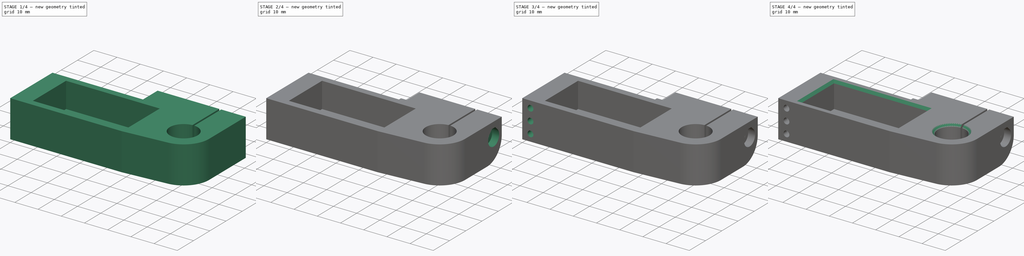
[diagram: build sequence overview — one tinted view per stage of 4, left to right]
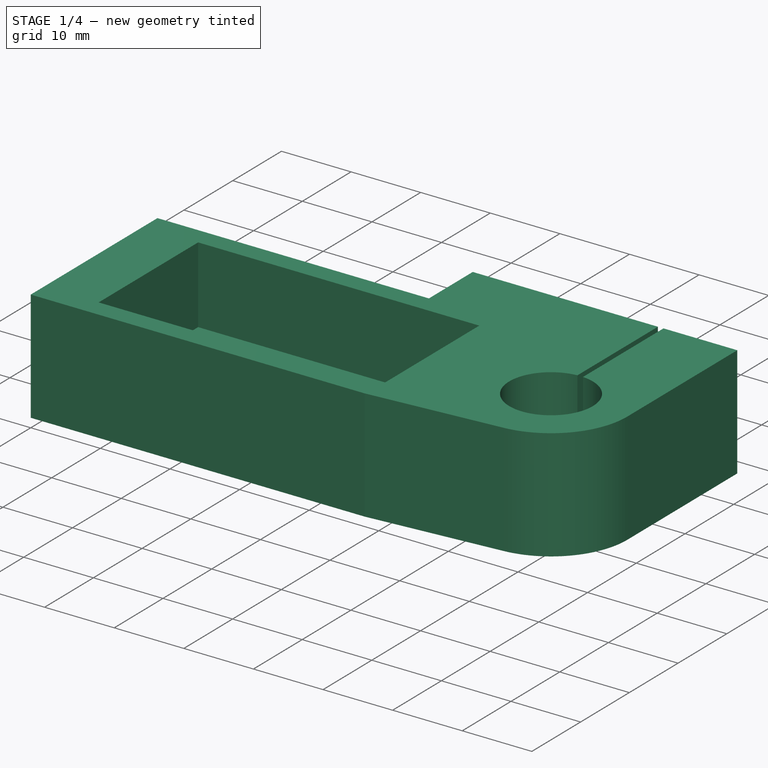
[diagram: stage 1 of 4 — iso view after this stage's code; geometry added in this stage tinted green]
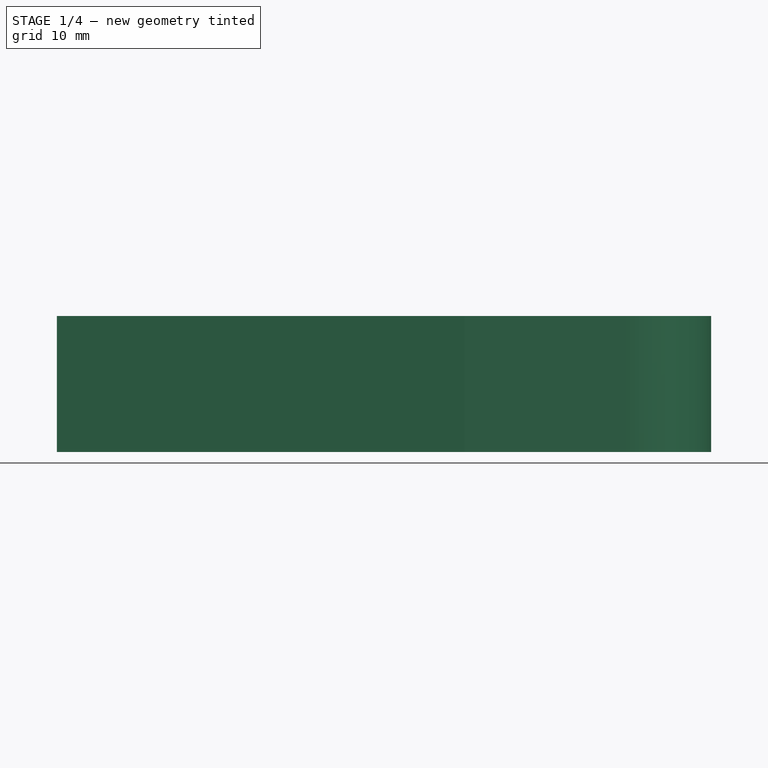
[diagram: stage 1 of 4 — front view after this stage's code; geometry added in this stage tinted green]
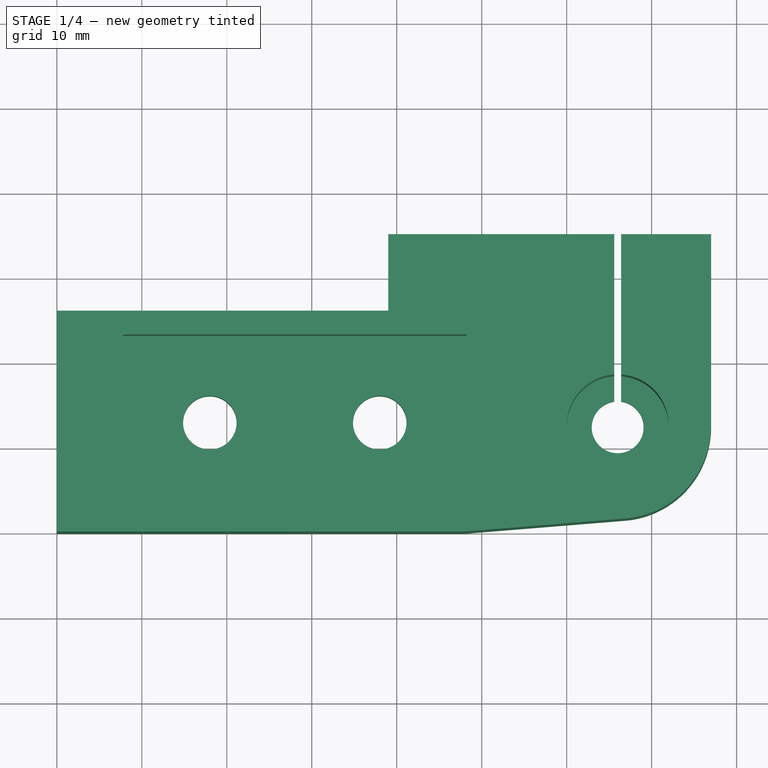
[diagram: stage 1 of 4 — top view after this stage's code; geometry added in this stage tinted green]
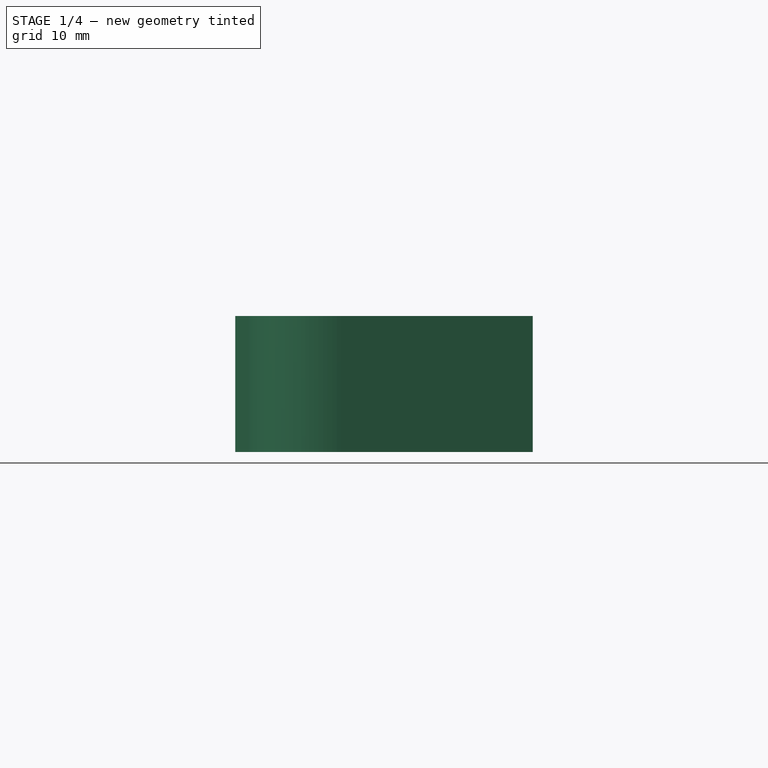
[diagram: stage 1 of 4 — right view after this stage's code; geometry added in this stage tinted green]
FCSTD DOCUMENT  (FreeCAD 0.17R13541 (Git))
Label: 05_438_z-upper-mount
License: All rights reserved
LicenseURL: http://en.wikipedia.org/wiki/All_rights_reserved
objects: Sketcher::SketchObject×14, PartDesign::Pocket×7, PartDesign::SubtractiveLoft×2, Spreadsheet::Sheet×1, PartDesign::Pad×1, PartDesign::Chamfer×1, PartDesign::Body×1
note: 36 computed .brp shape members not serialized (recipe doc carries the construction recipe); baked Part::Feature solids carry a one-line shape summary decoded from their .brp

FEATURE [Spreadsheet::Sheet] Spreadsheet  label="sheet1"
  cells = A1=dx; B1(dx)=77; A2=dy; B2(dy)=35; A3=dz; B3(dz)=16; A4=M6Clearance; B4(M6Clearance)=6.2999999999999998; A5=M6CounterSinkDepth; B5(M6CounterSinkDepth)=3.8500000000000001; A6=BowdenTubeClearance; B6(BowdenTubeClearance)=3.3999999999999999; A7=BowdenTubeStopHole; B7(BowdenTubeStopHole)=2.5; A8=BowdenTubeSpacing; B8(BowdenTubeSpacing)=5; A9=BowdenTubeX; B9(BowdenTubeX)=3.5499999999999998; A10=BowdenStopDepth; B10(BowdenStopDepth)=2; A11=ZPillarDxClearance; B11(ZPillarDxClearance)=8; A12=ZPillarDyClearance; B12(ZPillarDyClearance)=3; A13=ZPostClearance; B13(ZPostClearance)=12; A14=ZPostClampSlotWidth; B14(ZPostClampSlotWidth)=0.80000000000000004; A15=ZPostStopHole; B15(ZPostStopHole)=6.0999999999999996; A16=M3Clearance; B16(M3Clearance)=3.2999999999999998; A17=M3CounterBoreDepth; B17(M3CounterBoreDepth)=3; A18=M3CounterBoreClearance; B18(M3CounterBoreClearance)=6.7999999999999998; A19=M3NutClearance; B19(M3NutClearance)=5.5; A20=M3NutTrapDepth; B20(M3NutTrapDepth)=2.5; A21=M3ClampBoltSize; B21(M3ClampBoltSize)=35; A22=ZPillarBolt1X; B22(ZPillarBolt1X)=18; A23=ZPillarBolt1Y; B23(ZPillarBolt1Y)=13; A24=ZPillarBolt2X; B24(ZPillarBolt2X)=38; A25=ZPillarBolt2Y; B25(ZPillarBolt2Y)=13; A26=ZPillarDX; B26(ZPillarDX)=40; A27=ZPillarDY; B27(ZPillarDY)=20; A28=ZPostX; B28(ZPostX)=65.810000000000002; A29=ZPostY; B29(ZPostY)=12.5; A30=ClampBoltY; B30(ClampBoltY)=30; A31=ClampBoltZ; B31(ClampBoltZ)=9.6999999999999993; A32=PillarDepth; B32(PillarDepth)=11; A33=PostDepth; B33(PostDepth)=13.5
FEATURE [Sketcher::SketchObject] Sketch
  MapMode = 5
  Support = -> [XY_Plane]
  expr: Constraints[41] = sheet1.ZPostY
  expr: Constraints[9] = sheet1.ZPillarDX
  expr: Constraints[40] = sheet1.ZPillarDyClearance
  expr: Constraints[49] = sheet1.ZPostClearance / 2
  expr: Constraints[42] = sheet1.ZPostStopHole / 2
  expr: Constraints[8] = sheet1.ZPillarDY
  expr: Constraints[44] = sheet1.M3ClampBoltSize + sheet1.M3CounterBoreDepth
  expr: Constraints[47] = sheet1.M6Clearance / 2
  expr: Constraints[43] = sheet1.ZPostClampSlotWidth
  expr: Constraints[38] = sheet1.dy
  expr: Constraints[39] = sheet1.dx
  sketch-geometry (24):
    g0: LineSegment [constr] StartX=8 StartY=23 StartZ=0 EndX=48 EndY=23 EndZ=0
    g1: LineSegment [constr] StartX=48 StartY=23 StartZ=0 EndX=48 EndY=3 EndZ=0
    g2: LineSegment [constr] StartX=48 StartY=3 StartZ=0 EndX=8 EndY=3 EndZ=0
    g3: LineSegment [constr] StartX=8 StartY=3 StartZ=0 EndX=8 EndY=23 EndZ=0
    g4: LineSegment StartX=65.6 StartY=15.5237 StartZ=0 EndX=65.6 EndY=35 EndZ=0
    g5: LineSegment StartX=66.4 StartY=15.5237 StartZ=0 EndX=66.4 EndY=35 EndZ=0
    g6: ArcOfCircle CenterX=66 CenterY=12.5 CenterZ=0 NormalX=0 NormalY=0 NormalZ=1 AngleXU=0 Radius=3.05 StartAngle=1.70232 EndAngle=7.72246
    g7: LineSegment StartX=0 StartY=26 StartZ=0 EndX=0 EndY=0 EndZ=0
    g8: LineSegment StartX=0 StartY=0 StartZ=0 EndX=48 EndY=0 EndZ=0
    g9: LineSegment StartX=48 StartY=0 StartZ=0 EndX=66.8915 EndY=1.53619 EndZ=0
    g10: LineSegment StartX=77 StartY=12.5 StartZ=0 EndX=77 EndY=35 EndZ=0
    g11: LineSegment StartX=77 StartY=35 StartZ=0 EndX=66.4 EndY=35 EndZ=0
    g12: LineSegment StartX=65.6 StartY=35 StartZ=0 EndX=39 EndY=35 EndZ=0
    g13: LineSegment StartX=39 StartY=35 StartZ=0 EndX=39 EndY=26 EndZ=0
    g14: LineSegment StartX=39 StartY=26 StartZ=0 EndX=0 EndY=26 EndZ=0
    g15: ArcOfCircle CenterX=66 CenterY=12.5 CenterZ=0 NormalX=0 NormalY=0 NormalZ=1 AngleXU=0 Radius=11 StartAngle=4.79353 EndAngle=6.28319
    g16: LineSegment [constr] StartX=66 StartY=12.5 StartZ=0 EndX=66 EndY=35 EndZ=0
    g17: Circle CenterX=18 CenterY=13 CenterZ=0 NormalX=0 NormalY=0 NormalZ=1 AngleXU=0 Radius=3.15
    g18: Circle CenterX=38 CenterY=13 CenterZ=0 NormalX=0 NormalY=0 NormalZ=1 AngleXU=0 Radius=3.15
    g19: Circle [constr] CenterX=66 CenterY=12.5 CenterZ=0 NormalX=0 NormalY=0 NormalZ=1 AngleXU=0 Radius=6
    g20: GeomPoint X=48 Y=13 Z=0
    g21: LineSegment [constr] StartX=48 StartY=13 StartZ=0 EndX=8 EndY=13 EndZ=0
    g22: LineSegment [constr] StartX=28 StartY=23 StartZ=0 EndX=28 EndY=3 EndZ=0
    g23: GeomPoint X=28 Y=13 Z=0
  constraints (67):
    c: Coincident(g0,g1)
    c: Coincident(g1,g2)
    c: Coincident(g2,g3)
    c: Coincident(g3,g0)
    c: Horizontal(g0)
    c: Horizontal(g2)
    c: Vertical(g1)
    c: Vertical(g3)
    c: Distance(g1) = 20
    c: Distance(g0) = 40
    c: Vertical(g5)
    c: Vertical(g4)
    c: Coincident(g4,g6)
    c: Coincident(g5,g6)
    c: Coincident(g7,g8)
    c: Coincident(g8,g9)
    c: Coincident(g10,g11)
    c: Coincident(g12,g13)
    c: Coincident(g13,g14)
    c: Coincident(g7,g14)
    c: Coincident(g12,g4)
    c: Coincident(g5,g11)
    c: Coincident(g7,g-1)
    c: Vertical(g13)
    c: Vertical(g10)
    c: Vertical(g7)
    c: Horizontal(g14)
    c: Horizontal(g8)
    c: Horizontal(g12)
    c: Horizontal(g11)
    c: Coincident(g15,g6)
    c: Tangent(g15,g9) = -1.5708
    c: Tangent(g15,g10) = -1.5708
    c: Coincident(g16,g6)
    c: PointOnObject(g16,g12)
    c: Vertical(g16)
    c: Symmetric(g4,g5,g16)
    c: PointOnObject(g5,g12)
    c: Distance(g10,g-1) = 35
    c: DistanceX(g-2,g10) = 77
    c: Distance(g7,g0) = 3
    c: DistanceY(g-1,g6) = 12.5
    c: Radius(g6) = 3.05
    c: Distance(g5,g4) = 0.8
    c: Distance(g12,g10) = 38
    c: PointOnObject(g8,g1)
    c: Coincident(g19,g6)
    c: Radius(g17) = 3.15
    c: Equal(g17,g18)
    c: Radius(g19) = 6
    c: PointOnObject(g20,g1)
    c: Symmetric(g0,g1,g20)
    c: PointOnObject(g21,g3)
    c: Coincident(g21,g20)
    c: Horizontal(g21)
    c: PointOnObject(g18,g21)
    c: PointOnObject(g17,g21)
    c: PointOnObject(g22,g0)
    c: PointOnObject(g22,g2)
    c: Symmetric(g0,g0,g22)
    c: PointOnObject(g23,g21)
    c: PointOnObject(g23,g22)
    c: DistanceX(g-2,g23) = 28
    c: Distance(g17,g18) = 20
    c: Distance(g23,g17) = 10
    c: Distance(g6,g1) = 18
    c: Distance(g6,g21) = 0.5
FEATURE [PartDesign::Pad] Pad
  Length = 16
  Length2 = 100
  Profile = -> Sketch
  Type = 0
  expr: Length = sheet1.dz
FEATURE [Sketcher::SketchObject] Sketch001
  AttachmentOffset = pos=(0,0,16) rot=(0,0,1;0rad)
  MapMode = 5
  Placement = pos=(0,0,16) rot=(0,0,1;0rad)
  Support = -> [XY_Plane]
  expr: Constraints[41] = sheet1.ZPostY
  expr: Constraints[9] = sheet1.ZPillarDX + 0.20000000000000001
  expr: AttachmentOffset.Base.z = sheet1.dz
  expr: Constraints[8] = sheet1.ZPillarDY + 0.20000000000000001
  expr: Constraints[44] = sheet1.M3ClampBoltSize + sheet1.M3CounterBoreDepth
  expr: Constraints[43] = sheet1.ZPostClampSlotWidth
  expr: Constraints[47] = sheet1.M6Clearance / 2
  expr: Constraints[42] = sheet1.ZPostStopHole / 2
  expr: Constraints[49] = sheet1.ZPostClearance / 2
  expr: Constraints[40] = sheet1.ZPillarDyClearance
  expr: Constraints[39] = sheet1.dx
  expr: Constraints[38] = sheet1.dy
  sketch-geometry (27):
    g0: LineSegment [constr] StartX=7.9 StartY=23.1 StartZ=0 EndX=48.1 EndY=23.1 EndZ=0
    g1: LineSegment [constr] StartX=48.1 StartY=23.1 StartZ=0 EndX=48.1 EndY=2.9 EndZ=0
    g2: LineSegment [constr] StartX=48.1 StartY=2.9 StartZ=0 EndX=7.9 EndY=2.9 EndZ=0
    g3: LineSegment [constr] StartX=7.9 StartY=2.9 StartZ=0 EndX=7.9 EndY=23.1 EndZ=0
    g4: LineSegment [constr] StartX=65.7 StartY=15.5237 StartZ=0 EndX=65.7 EndY=35 EndZ=0
    g5: LineSegment [constr] StartX=66.5 StartY=15.5237 StartZ=0 EndX=66.5 EndY=35 EndZ=0
    g6: ArcOfCircle [constr] CenterX=66.1 CenterY=12.5 CenterZ=0 NormalX=0 NormalY=0 NormalZ=1 AngleXU=0 Radius=3.05 StartAngle=1.70232 EndAngle=7.72246
    g7: LineSegment [constr] StartX=0 StartY=26.1 StartZ=0 EndX=0 EndY=0 EndZ=0
    g8: LineSegment [constr] StartX=0 StartY=0 StartZ=0 EndX=48.1 EndY=0 EndZ=0
    g9: LineSegment [constr] StartX=48.1 StartY=0 StartZ=0 EndX=67.0406 EndY=1.64066 EndZ=0
    g10: LineSegment [constr] StartX=77 StartY=12.5 StartZ=0 EndX=77 EndY=35 EndZ=0
    g11: LineSegment [constr] StartX=77 StartY=35 StartZ=0 EndX=66.5 EndY=35 EndZ=0
    g12: LineSegment [constr] StartX=65.7 StartY=35 StartZ=0 EndX=39 EndY=35 EndZ=0
    g13: LineSegment [constr] StartX=39 StartY=35 StartZ=0 EndX=39 EndY=26.1 EndZ=0
    g14: LineSegment [constr] StartX=39 StartY=26.1 StartZ=0 EndX=0 EndY=26.1 EndZ=0
    g15: ArcOfCircle [constr] CenterX=66.1 CenterY=12.5 CenterZ=0 NormalX=0 NormalY=0 NormalZ=1 AngleXU=0 Radius=10.9 StartAngle=4.79879 EndAngle=6.28319
    g16: LineSegment [constr] StartX=66.1 StartY=12.5 StartZ=0 EndX=66.1 EndY=35 EndZ=0
    g17: Circle [constr] CenterX=18 CenterY=13 CenterZ=0 NormalX=0 NormalY=0 NormalZ=1 AngleXU=0 Radius=3.15
    g18: Circle [constr] CenterX=38 CenterY=13 CenterZ=0 NormalX=0 NormalY=0 NormalZ=1 AngleXU=0 Radius=3.15
    g19: Circle [constr] CenterX=66.1 CenterY=12.5 CenterZ=0 NormalX=0 NormalY=0 NormalZ=1 AngleXU=0 Radius=6
    g20: LineSegment [constr] StartX=48.1 StartY=13 StartZ=0 EndX=7.9 EndY=13 EndZ=0
    g21: LineSegment [constr] StartX=28 StartY=23.1 StartZ=0 EndX=28 EndY=2.9 EndZ=0
    g22: LineSegment StartX=7.8 StartY=23.2 StartZ=0 EndX=48.2 EndY=23.2 EndZ=0
    g23: LineSegment StartX=48.2 StartY=23.2 StartZ=0 EndX=48.2 EndY=2.8 EndZ=0
    g24: LineSegment StartX=48.2 StartY=2.8 StartZ=0 EndX=7.8 EndY=2.8 EndZ=0
    g25: LineSegment StartX=7.8 StartY=2.8 StartZ=0 EndX=7.8 EndY=23.2 EndZ=0
    g26: GeomPoint X=28 Y=13 Z=0
  constraints (77):
    c: Coincident(g0,g1)
    c: Coincident(g1,g2)
    c: Coincident(g2,g3)
    c: Coincident(g3,g0)
    c: Horizontal(g0)
    c: Horizontal(g2)
    c: Vertical(g1)
    c: Vertical(g3)
    c: Distance(g1) = 20.2
    c: Distance(g0) = 40.2
    c: Vertical(g5)
    c: Vertical(g4)
    c: Coincident(g4,g6)
    c: Coincident(g5,g6)
    c: Coincident(g7,g8)
    c: Coincident(g8,g9)
    c: Coincident(g10,g11)
    c: Coincident(g12,g13)
    c: Coincident(g13,g14)
    c: Coincident(g7,g14)
    c: Coincident(g12,g4)
    c: Coincident(g5,g11)
    c: Coincident(g7,g-1)
    c: Vertical(g13)
    c: Vertical(g10)
    c: Vertical(g7)
    c: Horizontal(g14)
    c: Horizontal(g8)
    c: Horizontal(g12)
    c: Horizontal(g11)
    c: Coincident(g15,g6)
    c: Tangent(g15,g9) = -1.5708
    c: Tangent(g15,g10) = -1.5708
    c: Coincident(g16,g6)
    c: PointOnObject(g16,g12)
    c: Vertical(g16)
    c: Symmetric(g4,g5,g16)
    c: PointOnObject(g5,g12)
    c: Distance(g10,g-1) = 35
    c: DistanceX(g-2,g10) = 77
    c: Distance(g7,g0) = 3
    c: DistanceY(g-1,g6) = 12.5
    c: Radius(g6) = 3.05
    c: Distance(g5,g4) = 0.8
    c: Distance(g12,g10) = 38
    c: PointOnObject(g8,g1)
    c: Coincident(g19,g6)
    c: Radius(g17) = 3.15
    c: Equal(g17,g18)
    c: Radius(g19) = 6
    c: PointOnObject(g20,g1)
    c: PointOnObject(g20,g3)
    c: Symmetric(g0,g1,g20)
    c: PointOnObject(g18,g20)
    c: PointOnObject(g17,g20)
    c: PointOnObject(g21,g0)
    c: PointOnObject(g21,g2)
    c: Symmetric(g0,g0,g21)
    c: Coincident(g22,g23)
    c: Coincident(g23,g24)
    c: Coincident(g24,g25)
    c: Coincident(g25,g22)
    c: Horizontal(g22)
    c: Horizontal(g24)
    c: Vertical(g23)
    c: Vertical(g25)
    c: Symmetric(g22,g22,g21)
    c: Symmetric(g24,g22,g20)
    c: Distance(g24,g3) = 0.1
    c: Distance(g2,g24) = 0.1
    c: PointOnObject(g26,g20)
    c: PointOnObject(g26,g21)
    c: Distance(g18,g17) = 20
    c: Distance(g17,g21) = 10
    c: Distance(g6,g20) = 0.5
    c: Distance(g6,g1) = 18
    c: DistanceX(g-2,g26) = 28
FEATURE [PartDesign::Pocket] Pocket
  BaseFeature = -> Pad
  Length = 11
  Length2 = 100
  Profile = -> Sketch001
  Type = 0
  expr: Length = sheet1.PillarDepth
FEATURE [Sketcher::SketchObject] Sketch002
  AttachmentOffset = pos=(0,0,16) rot=(0,0,1;0rad)
  MapMode = 5
  Placement = pos=(0,0,16) rot=(0,0,1;0rad)
  Support = -> [XY_Plane]
  expr: Constraints[46] = sheet1.M6Clearance / 2
  expr: Constraints[8] = sheet1.ZPillarDY
  expr: AttachmentOffset.Base.z = sheet1.dz
  expr: Constraints[48] = sheet1.ZPostClearance / 2
  expr: Constraints[43] = sheet1.M3ClampBoltSize + sheet1.M3CounterBoreDepth
  expr: Constraints[42] = sheet1.ZPostClampSlotWidth
  expr: Constraints[41] = sheet1.ZPostStopHole / 2
  expr: Constraints[9] = sheet1.ZPillarDX
  expr: Constraints[40] = sheet1.ZPillarDyClearance
  expr: Constraints[39] = sheet1.dx
  expr: Constraints[38] = sheet1.dy
  sketch-geometry (23):
    g0: LineSegment [constr] StartX=8 StartY=23 StartZ=0 EndX=48 EndY=23 EndZ=0
    g1: LineSegment [constr] StartX=48 StartY=23 StartZ=0 EndX=48 EndY=3 EndZ=0
    g2: LineSegment [constr] StartX=48 StartY=3 StartZ=0 EndX=8 EndY=3 EndZ=0
    g3: LineSegment [constr] StartX=8 StartY=3 StartZ=0 EndX=8 EndY=23 EndZ=0
    g4: LineSegment [constr] StartX=65.6 StartY=15.5237 StartZ=0 EndX=65.6 EndY=35 EndZ=0
    g5: LineSegment [constr] StartX=66.4 StartY=15.5237 StartZ=0 EndX=66.4 EndY=35 EndZ=0
    g6: ArcOfCircle [constr] CenterX=66 CenterY=12.5 CenterZ=0 NormalX=0 NormalY=0 NormalZ=1 AngleXU=0 Radius=3.05 StartAngle=1.70232 EndAngle=7.72246
    g7: LineSegment [constr] StartX=0 StartY=26 StartZ=0 EndX=0 EndY=0 EndZ=0
    g8: LineSegment [constr] StartX=0 StartY=0 StartZ=0 EndX=48 EndY=0 EndZ=0
    g9: LineSegment [constr] StartX=48 StartY=0 StartZ=0 EndX=66.8915 EndY=1.53619 EndZ=0
    g10: LineSegment [constr] StartX=77 StartY=12.5 StartZ=0 EndX=77 EndY=35 EndZ=0
    g11: LineSegment [constr] StartX=77 StartY=35 StartZ=0 EndX=66.4 EndY=35 EndZ=0
    g12: LineSegment [constr] StartX=65.6 StartY=35 StartZ=0 EndX=39 EndY=35 EndZ=0
    g13: LineSegment [constr] StartX=39 StartY=35 StartZ=0 EndX=39 EndY=26 EndZ=0
    g14: LineSegment [constr] StartX=39 StartY=26 StartZ=0 EndX=0 EndY=26 EndZ=0
    g15: ArcOfCircle [constr] CenterX=66 CenterY=12.5 CenterZ=0 NormalX=0 NormalY=0 NormalZ=1 AngleXU=0 Radius=11 StartAngle=4.79353 EndAngle=6.28319
    g16: LineSegment [constr] StartX=66 StartY=12.5 StartZ=0 EndX=66 EndY=35 EndZ=0
    g17: Circle [constr] CenterX=18 CenterY=13 CenterZ=0 NormalX=0 NormalY=0 NormalZ=1 AngleXU=0 Radius=3.15
    g18: Circle [constr] CenterX=38 CenterY=13 CenterZ=0 NormalX=0 NormalY=0 NormalZ=1 AngleXU=0 Radius=3.15
    g19: Circle CenterX=66 CenterY=12.5 CenterZ=0 NormalX=0 NormalY=0 NormalZ=1 AngleXU=0 Radius=6
    g20: LineSegment [constr] StartX=8 StartY=13 StartZ=0 EndX=48 EndY=13 EndZ=0
    g21: LineSegment [constr] StartX=28 StartY=23 StartZ=0 EndX=28 EndY=3 EndZ=0
    g22: GeomPoint X=28 Y=13 Z=0
  constraints (65):
    c: Coincident(g0,g1)
    c: Coincident(g1,g2)
    c: Coincident(g2,g3)
    c: Coincident(g3,g0)
    c: Horizontal(g0)
    c: Horizontal(g2)
    c: Vertical(g1)
    c: Vertical(g3)
    c: Distance(g1) = 20
    c: Distance(g0) = 40
    c: Vertical(g5)
    c: Vertical(g4)
    c: Coincident(g4,g6)
    c: Coincident(g5,g6)
    c: Coincident(g7,g8)
    c: Coincident(g8,g9)
    c: Coincident(g10,g11)
    c: Coincident(g12,g13)
    c: Coincident(g13,g14)
    c: Coincident(g7,g14)
    c: Coincident(g12,g4)
    c: Coincident(g5,g11)
    c: Coincident(g7,g-1)
    c: Vertical(g13)
    c: Vertical(g10)
    c: Vertical(g7)
    c: Horizontal(g14)
    c: Horizontal(g8)
    c: Horizontal(g12)
    c: Horizontal(g11)
    c: Coincident(g15,g6)
    c: Tangent(g15,g9) = -1.5708
    c: Tangent(g15,g10) = -1.5708
    c: Coincident(g16,g6)
    c: PointOnObject(g16,g12)
    c: Vertical(g16)
    c: Symmetric(g4,g5,g16)
    c: PointOnObject(g5,g12)
    c: Distance(g10,g-1) = 35
    c: DistanceX(g-2,g10) = 77
    c: Distance(g7,g0) = 3
    c: Radius(g6) = 3.05
    c: Distance(g5,g4) = 0.8
    c: Distance(g12,g10) = 38
    c: PointOnObject(g8,g1)
    c: Coincident(g19,g6)
    c: Radius(g17) = 3.15
    c: Equal(g17,g18)
    c: Radius(g19) = 6
    c: PointOnObject(g20,g1)
    c: PointOnObject(g20,g3)
    c: PointOnObject(g18,g20)
    c: Symmetric(g0,g1,g20)
    c: PointOnObject(g17,g20)
    c: PointOnObject(g21,g0)
    c: PointOnObject(g21,g2)
    c: PointOnObject(g22,g20)
    c: PointOnObject(g22,g21)
    c: Symmetric(g0,g0,g21)
    c: Distance(g6,g1) = 18
    c: Distance(g17,g18) = 20
    c: Distance(g22,g17) = 10
    c: DistanceY(g-1,g22) = 13
    c: Distance(g6,g20) = 0.5
    c: DistanceX(g-2,g22) = 28
FEATURE [PartDesign::Pocket] Pocket001
  BaseFeature = -> Pocket
  Length = 13.5
  Length2 = 100
  Profile = -> Sketch002
  Type = 0
  expr: Length = sheet1.PostDepth
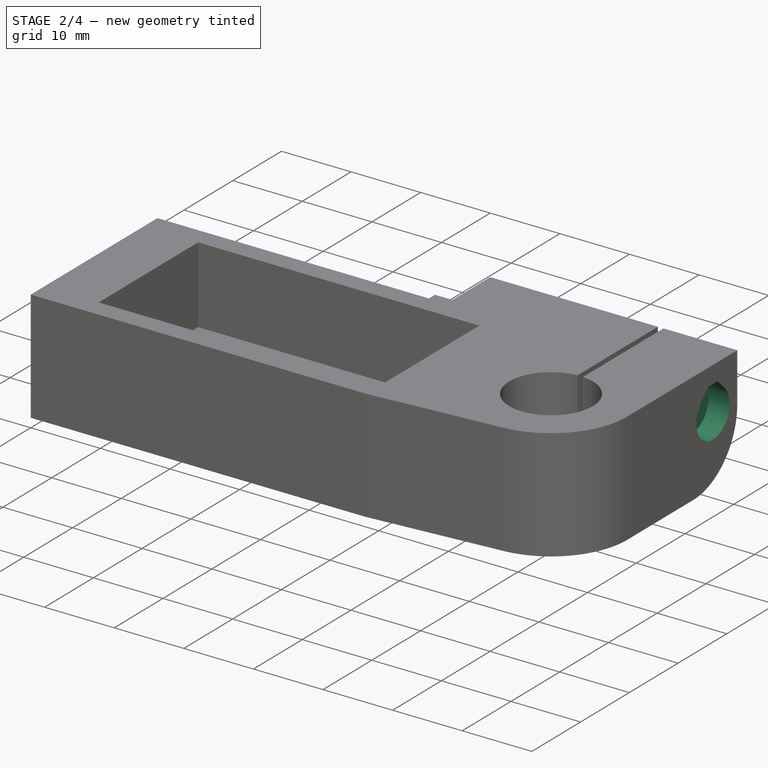
[diagram: stage 2 of 4 — iso view after this stage's code; geometry added in this stage tinted green]
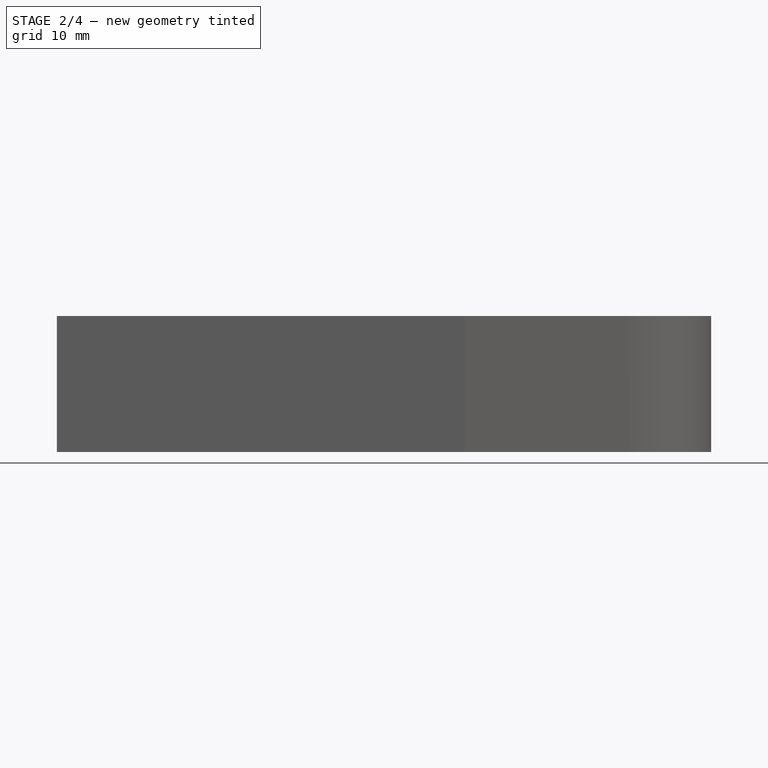
[diagram: stage 2 of 4 — front view after this stage's code; geometry added in this stage tinted green]
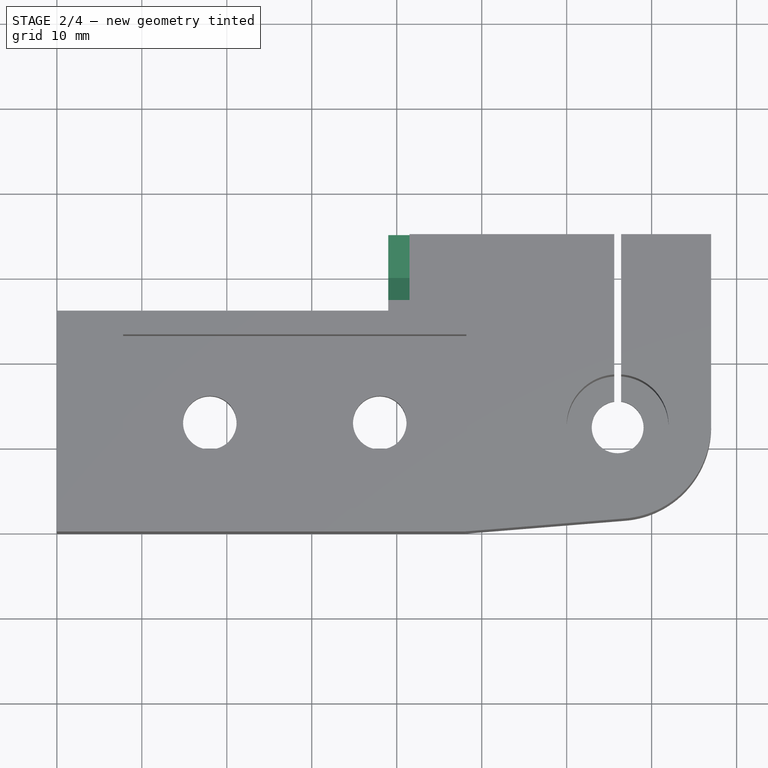
[diagram: stage 2 of 4 — top view after this stage's code; geometry added in this stage tinted green]
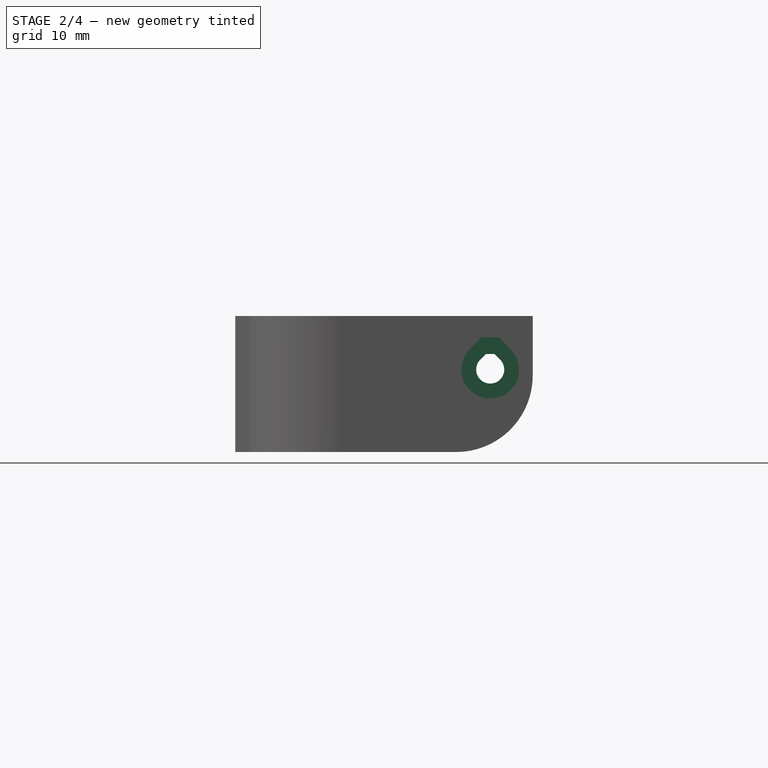
[diagram: stage 2 of 4 — right view after this stage's code; geometry added in this stage tinted green]
FEATURE [Sketcher::SketchObject] Sketch003
  MapMode = 5
  Placement = pos=(0,0,0) rot=(0.57735,0.57735,0.57735;2.0944rad)
  Support = -> [YZ_Plane]
  expr: Constraints[38] = sheet1.M3Clearance / 2
  expr: Constraints[28] = sheet1.dy - sheet1.ZPillarDY - 2 * sheet1.ZPillarDyClearance
  expr: Constraints[25] = sheet1.dz
  expr: Constraints[27] = sheet1.dy
  expr: Constraints[9] = sheet1.ClampBoltZ
  expr: Constraints[7] = sheet1.M3CounterBoreClearance / 2
  expr: Constraints[10] = sheet1.ClampBoltY
  sketch-geometry (14):
    g0: ArcOfCircle [constr] CenterX=30 CenterY=9.7 CenterZ=0 NormalX=0 NormalY=0 NormalZ=1 AngleXU=0 Radius=3.4 StartAngle=2.35619 EndAngle=7.06858
    g1: LineSegment [constr] StartX=27.5958 StartY=12.1042 StartZ=0 EndX=29 EndY=13.5083 EndZ=0
    g2: LineSegment [constr] StartX=29 StartY=13.5083 StartZ=0 EndX=31 EndY=13.5083 EndZ=0
    g3: LineSegment [constr] StartX=31 StartY=13.5083 StartZ=0 EndX=32.4042 EndY=12.1042 EndZ=0
    g4: ArcOfCircle CenterX=26 CenterY=9 CenterZ=0 NormalX=0 NormalY=0 NormalZ=1 AngleXU=0 Radius=9 StartAngle=4.71239 EndAngle=6.28319
    g5: LineSegment StartX=35 StartY=16 StartZ=0 EndX=36 EndY=16 EndZ=0
    g6: LineSegment StartX=36 StartY=16 StartZ=0 EndX=36 EndY=-1 EndZ=0
    g7: LineSegment StartX=36 StartY=-1 StartZ=0 EndX=26 EndY=-1 EndZ=0
    g8: LineSegment StartX=26 StartY=-1 StartZ=0 EndX=26 EndY=6.1e-11 EndZ=0
    g9: LineSegment StartX=35 StartY=16 StartZ=0 EndX=35 EndY=9 EndZ=0
    g10: ArcOfCircle CenterX=30 CenterY=9.7 CenterZ=0 NormalX=0 NormalY=0 NormalZ=1 AngleXU=0 Radius=1.65 StartAngle=2.35619 EndAngle=7.06858
    g11: LineSegment StartX=28.8333 StartY=10.8667 StartZ=0 EndX=29.5 EndY=11.5335 EndZ=0
    g12: LineSegment StartX=29.5 StartY=11.5335 StartZ=0 EndX=30.5 EndY=11.5335 EndZ=0
    g13: LineSegment StartX=30.5 StartY=11.5335 StartZ=0 EndX=31.1667 EndY=10.8667 EndZ=0
  constraints (39):
    c: Coincident(g1,g2)
    c: Coincident(g2,g3)
    c: Tangent(g0,g1) = 1.5708
    c: Tangent(g0,g3) = 1.5708
    c: Equal(g1,g3)
    c: Horizontal(g2)
    c: Angle(g1,g2) = 2.35619
    c: Radius(g0) = 3.4
    c: Distance(g2) = 2
    c: DistanceY(g-1,g0) = 9.7
    c: DistanceX(g-2,g0) = 30
    c: PointOnObject(g4,g-1)
    c: Tangent(g4,g-1)
    c: Coincident(g5,g6)
    c: Coincident(g6,g7)
    c: Coincident(g7,g8)
    c: Coincident(g8,g4)
    c: Coincident(g5,g9)
    c: Horizontal(g5)
    c: Horizontal(g7)
    c: Vertical(g8)
    c: Vertical(g6)
    c: Vertical(g9)
    c: Equal(g8,g5)
    c: Distance(g8) = 1
    c: DistanceY(g-1,g5) = 16
    c: Tangent(g4,g9) = 1.5708
    c: DistanceX(g-2,g5) = 35
    c: Radius(g4) = 9
    c: Coincident(g10,g0)
    c: Coincident(g11,g12)
    c: Coincident(g12,g13)
    c: Equal(g11,g13)
    c: Horizontal(g12)
    c: Tangent(g10,g11) = 1.5708
    c: Tangent(g10,g13) = 1.5708
    c: Angle(g11,g12) = 2.35619
    c: Distance(g12) = 1
    c: Radius(g10) = 1.65
FEATURE [PartDesign::Pocket] Pocket002
  BaseFeature = -> Pocket001
  Length = 5
  Length2 = 100
  Profile = -> Sketch003
  Reversed = true
  Type = 1
FEATURE [Sketcher::SketchObject] Sketch004
  AttachmentOffset = pos=(0,0,77) rot=(0,0,1;0rad)
  MapMode = 5
  Placement = pos=(77,-9e-12,9e-12) rot=(0.57735,0.57735,0.57735;2.0944rad)
  Support = -> [YZ_Plane]
  expr: AttachmentOffset.Base.z = sheet1.dx
  expr: Constraints[38] = sheet1.M3Clearance / 2
  expr: Constraints[28] = sheet1.dy - sheet1.ZPillarDY - 2 * sheet1.ZPillarDyClearance
  expr: Constraints[25] = sheet1.dz
  expr: Constraints[27] = sheet1.dy
  expr: Constraints[9] = sheet1.ClampBoltZ
  expr: Constraints[7] = sheet1.M3CounterBoreClearance / 2
  expr: Constraints[10] = sheet1.ClampBoltY
  sketch-geometry (14):
    g0: ArcOfCircle CenterX=30 CenterY=9.7 CenterZ=0 NormalX=0 NormalY=0 NormalZ=1 AngleXU=0 Radius=3.4 StartAngle=2.35619 EndAngle=7.06858
    g1: LineSegment StartX=27.5958 StartY=12.1042 StartZ=0 EndX=29 EndY=13.5083 EndZ=0
    g2: LineSegment StartX=29 StartY=13.5083 StartZ=0 EndX=31 EndY=13.5083 EndZ=0
    g3: LineSegment StartX=31 StartY=13.5083 StartZ=0 EndX=32.4042 EndY=12.1042 EndZ=0
    g4: ArcOfCircle [constr] CenterX=26 CenterY=9 CenterZ=0 NormalX=0 NormalY=0 NormalZ=1 AngleXU=0 Radius=9 StartAngle=4.71239 EndAngle=6.28319
    g5: LineSegment [constr] StartX=35 StartY=16 StartZ=0 EndX=36 EndY=16 EndZ=0
    g6: LineSegment [constr] StartX=36 StartY=16 StartZ=0 EndX=36 EndY=-1 EndZ=0
    g7: LineSegment [constr] StartX=36 StartY=-1 StartZ=0 EndX=26 EndY=-1 EndZ=0
    g8: LineSegment [constr] StartX=26 StartY=-1 StartZ=0 EndX=26 EndY=6.1e-11 EndZ=0
    g9: LineSegment [constr] StartX=35 StartY=16 StartZ=0 EndX=35 EndY=9 EndZ=0
    g10: ArcOfCircle [constr] CenterX=30 CenterY=9.7 CenterZ=0 NormalX=0 NormalY=0 NormalZ=1 AngleXU=0 Radius=1.65 StartAngle=2.35619 EndAngle=7.06858
    g11: LineSegment [constr] StartX=28.8333 StartY=10.8667 StartZ=0 EndX=29.5 EndY=11.5335 EndZ=0
    g12: LineSegment [constr] StartX=29.5 StartY=11.5335 StartZ=0 EndX=30.5 EndY=11.5335 EndZ=0
    g13: LineSegment [constr] StartX=30.5 StartY=11.5335 StartZ=0 EndX=31.1667 EndY=10.8667 EndZ=0
  constraints (39):
    c: Coincident(g1,g2)
    c: Coincident(g2,g3)
    c: Tangent(g0,g1) = 1.5708
    c: Tangent(g0,g3) = 1.5708
    c: Equal(g1,g3)
    c: Horizontal(g2)
    c: Angle(g1,g2) = 2.35619
    c: Radius(g0) = 3.4
    c: Distance(g2) = 2
    c: DistanceY(g-1,g0) = 9.7
    c: DistanceX(g-2,g0) = 30
    c: PointOnObject(g4,g-1)
    c: Tangent(g4,g-1)
    c: Coincident(g5,g6)
    c: Coincident(g6,g7)
    c: Coincident(g7,g8)
    c: Coincident(g8,g4)
    c: Coincident(g5,g9)
    c: Horizontal(g5)
    c: Horizontal(g7)
    c: Vertical(g8)
    c: Vertical(g6)
    c: Vertical(g9)
    c: Equal(g8,g5)
    c: Distance(g8) = 1
    c: DistanceY(g-1,g5) = 16
    c: Tangent(g4,g9) = 1.5708
    c: DistanceX(g-2,g5) = 35
    c: Radius(g4) = 9
    c: Coincident(g10,g0)
    c: Coincident(g11,g12)
    c: Coincident(g12,g13)
    c: Equal(g11,g13)
    c: Horizontal(g12)
    c: Tangent(g10,g11) = 1.5708
    c: Tangent(g10,g13) = 1.5708
    c: Angle(g11,g12) = 2.35619
    c: Distance(g12) = 1
    c: Radius(g10) = 1.65
FEATURE [PartDesign::Pocket] Pocket003
  BaseFeature = -> Pocket002
  Length = 3
  Length2 = 100
  Profile = -> Sketch004
  Type = 0
  expr: Length = sheet1.M3CounterBoreDepth
FEATURE [Sketcher::SketchObject] Sketch005
  AttachmentOffset = pos=(0,0,39) rot=(0,0,1;0rad)
  MapMode = 5
  Placement = pos=(39,-4e-12,4e-12) rot=(0.57735,0.57735,0.57735;2.0944rad)
  Support = -> [YZ_Plane]
  expr: AttachmentOffset.Base.z = sheet1.dx - sheet1.M3ClampBoltSize - sheet1.M3CounterBoreDepth
  expr: Constraints[68] = sheet1.M3NutClearance
  expr: Constraints[38] = sheet1.M3Clearance / 2
  expr: Constraints[28] = sheet1.dy - sheet1.ZPillarDY - 2 * sheet1.ZPillarDyClearance
  expr: Constraints[25] = sheet1.dz
  expr: Constraints[27] = sheet1.dy
  expr: Constraints[9] = sheet1.ClampBoltZ
  expr: Constraints[7] = sheet1.M3CounterBoreClearance / 2
  expr: Constraints[10] = sheet1.ClampBoltY
  sketch-geometry (25):
    g0: ArcOfCircle [constr] CenterX=30 CenterY=9.7 CenterZ=0 NormalX=0 NormalY=0 NormalZ=1 AngleXU=0 Radius=3.4 StartAngle=2.35619 EndAngle=7.06858
    g1: LineSegment [constr] StartX=27.5958 StartY=12.1042 StartZ=0 EndX=29 EndY=13.5083 EndZ=0
    g2: LineSegment [constr] StartX=29 StartY=13.5083 StartZ=0 EndX=31 EndY=13.5083 EndZ=0
    g3: LineSegment [constr] StartX=31 StartY=13.5083 StartZ=0 EndX=32.4042 EndY=12.1042 EndZ=0
    g4: ArcOfCircle [constr] CenterX=26 CenterY=9 CenterZ=0 NormalX=0 NormalY=0 NormalZ=1 AngleXU=0 Radius=9 StartAngle=4.71239 EndAngle=6.28319
    g5: LineSegment [constr] StartX=35 StartY=16 StartZ=0 EndX=36 EndY=16 EndZ=0
    g6: LineSegment [constr] StartX=36 StartY=16 StartZ=0 EndX=36 EndY=-1 EndZ=0
    g7: LineSegment [constr] StartX=36 StartY=-1 StartZ=0 EndX=26 EndY=-1 EndZ=0
    g8: LineSegment [constr] StartX=26 StartY=-1 StartZ=0 EndX=26 EndY=0 EndZ=0
    g9: LineSegment [constr] StartX=35 StartY=16 StartZ=0 EndX=35 EndY=9 EndZ=0
    g10: ArcOfCircle [constr] CenterX=30 CenterY=9.7 CenterZ=0 NormalX=0 NormalY=0 NormalZ=1 AngleXU=0 Radius=1.65 StartAngle=2.35619 EndAngle=7.06858
    g11: LineSegment [constr] StartX=28.8333 StartY=10.8667 StartZ=0 EndX=29.5 EndY=11.5335 EndZ=0
    g12: LineSegment [constr] StartX=29.5 StartY=11.5335 StartZ=0 EndX=30.5 EndY=11.5335 EndZ=0
    g13: LineSegment [constr] StartX=30.5 StartY=11.5335 StartZ=0 EndX=31.1667 EndY=10.8667 EndZ=0
    g14: LineSegment [constr] StartX=30 StartY=12.8754 StartZ=0 EndX=27.25 EndY=11.2877 EndZ=0
    g15: LineSegment StartX=27.25 StartY=11.2877 StartZ=0 EndX=27.25 EndY=8.11229 EndZ=0
    g16: LineSegment StartX=27.25 StartY=8.11229 StartZ=0 EndX=30 EndY=6.52457 EndZ=0
    g17: LineSegment StartX=30 StartY=6.52457 StartZ=0 EndX=32.75 EndY=8.11229 EndZ=0
    g18: LineSegment [constr] StartX=32.75 StartY=8.11229 StartZ=0 EndX=32.75 EndY=11.2877 EndZ=0
    g19: LineSegment [constr] StartX=32.75 StartY=11.2877 StartZ=0 EndX=30 EndY=12.8754 EndZ=0
    g20: Circle [constr] CenterX=30 CenterY=9.7 CenterZ=0 NormalX=0 NormalY=0 NormalZ=1 AngleXU=0 Radius=3.17543
    g21: LineSegment StartX=27.25 StartY=11.2877 StartZ=0 EndX=27.25 EndY=16 EndZ=0
    g22: LineSegment StartX=27.25 StartY=16 StartZ=0 EndX=35 EndY=16 EndZ=0
    g23: LineSegment StartX=35 StartY=16 StartZ=0 EndX=35 EndY=9.41132 EndZ=0
    g24: LineSegment StartX=35 StartY=9.41132 StartZ=0 EndX=32.75 EndY=8.11229 EndZ=0
  constraints (65):
    c: Coincident(g1,g2)
    c: Coincident(g2,g3)
    c: Tangent(g0,g1) = 1.5708
    c: Tangent(g0,g3) = 1.5708
    c: Equal(g1,g3)
    c: Horizontal(g2)
    c: Angle(g1,g2) = 2.35619
    c: Radius(g0) = 3.4
    c: Distance(g2) = 2
    c: DistanceY(g-1,g0) = 9.7
    c: DistanceX(g-2,g0) = 30
    c: PointOnObject(g4,g-1)
    c: Tangent(g4,g-1)
    c: Coincident(g5,g6)
    c: Coincident(g6,g7)
    c: Coincident(g7,g8)
    c: Coincident(g8,g4)
    c: Coincident(g5,g9)
    c: Horizontal(g5)
    c: Horizontal(g7)
    c: Vertical(g8)
    c: Vertical(g6)
    c: Vertical(g9)
    c: Equal(g8,g5)
    c: Distance(g8) = 1
    c: DistanceY(g-1,g5) = 16
    c: Tangent(g4,g9) = 1.5708
    c: DistanceX(g-2,g5) = 35
    c: Radius(g4) = 9
    c: Coincident(g10,g0)
    c: Coincident(g11,g12)
    c: Coincident(g12,g13)
    c: Equal(g11,g13)
    c: Horizontal(g12)
    c: Tangent(g10,g11) = 1.5708
    c: Tangent(g10,g13) = 1.5708
    c: Angle(g11,g12) = 2.35619
    c: Distance(g12) = 1
    c: Radius(g10) = 1.65
    c: Coincident(g14,g15)
    c: Coincident(g15,g16)
    c: Coincident(g16,g17)
    c: Coincident(g17,g18)
    c: Coincident(g18,g19)
    c: Coincident(g19,g14)
    c: Equal(g14, g15-g19) x5
    c: PointOnObject(g14,g20)
    c: PointOnObject(g15,g20)
    c: PointOnObject(g16,g20)
    c: PointOnObject(g17,g20)
    c: PointOnObject(g18,g20)
    c: PointOnObject(g19,g20)
    c: Coincident(g20,g0)
    c: Vertical(g15)
    c: Coincident(g14,g21)
    c: Vertical(g21)
    c: Coincident(g22,g23)
    c: Coincident(g23,g24)
    c: Coincident(g17,g24)
    c: Coincident(g21,g22)
    c: Coincident(g5,g22)
    c: Horizontal(g22)
    c: Vertical(g23)
    c: Parallel(g24,g17)
    c: Distance(g18,g15) = 5.5
FEATURE [PartDesign::Pocket] Pocket004
  BaseFeature = -> Pocket003
  Length = 2.5
  Length2 = 100
  Profile = -> Sketch005
  Reversed = true
  Type = 0
  expr: Length = sheet1.M3NutTrapDepth
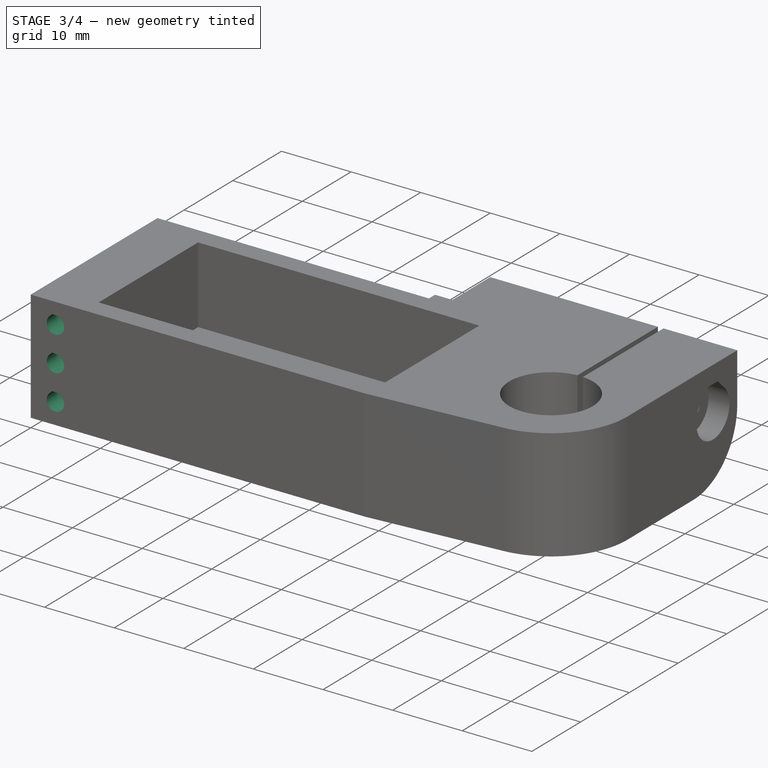
[diagram: stage 3 of 4 — iso view after this stage's code; geometry added in this stage tinted green]
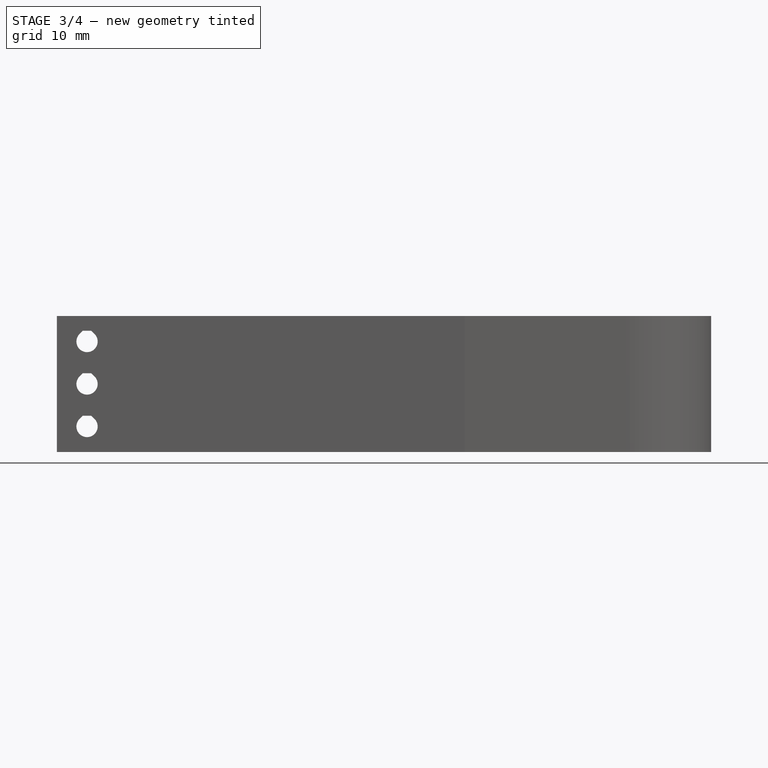
[diagram: stage 3 of 4 — front view after this stage's code; geometry added in this stage tinted green]
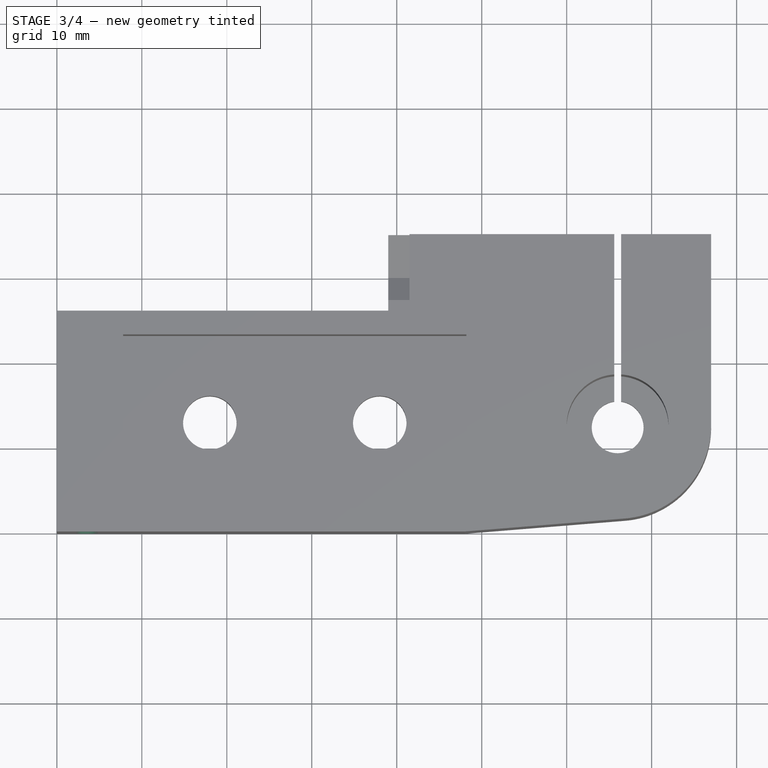
[diagram: stage 3 of 4 — top view after this stage's code; geometry added in this stage tinted green]
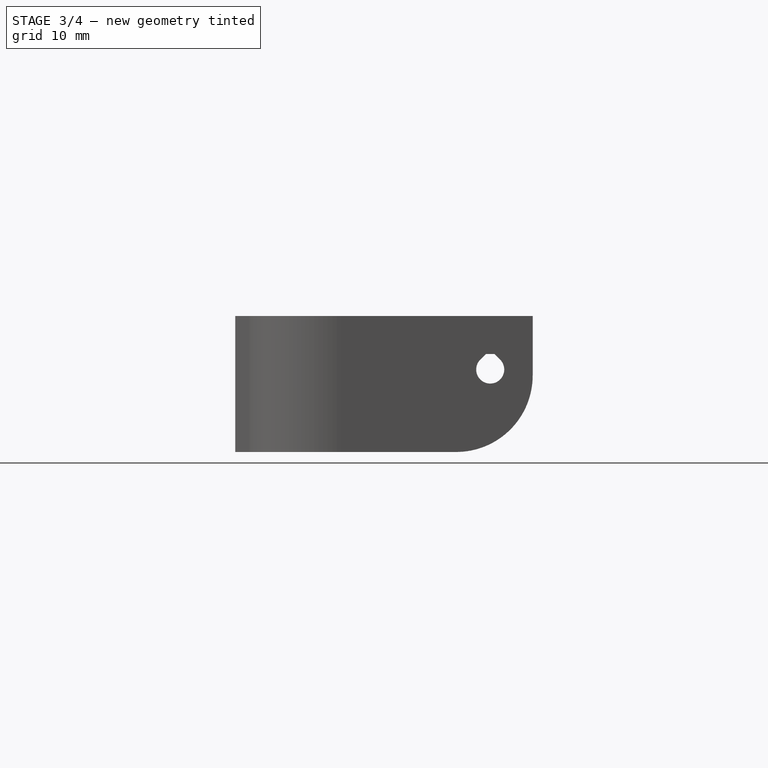
[diagram: stage 3 of 4 — right view after this stage's code; geometry added in this stage tinted green]
FEATURE [Sketcher::SketchObject] Sketch006
  MapMode = 5
  Placement = pos=(0,0,0) rot=(1,0,0;1.5708rad)
  Support = -> [XZ_Plane]
  expr: Constraints[37] = sheet1.BowdenTubeClearance / 2
  expr: Constraints[3] = sheet1.BowdenTubeStopHole / 2
  expr: Constraints[32] = sheet1.BowdenTubeSpacing
  expr: Constraints[33] = sheet1.dz / 2
  expr: Constraints[31] = sheet1.BowdenTubeX
  sketch-geometry (25):
    g0: ArcOfCircle CenterX=3.55 CenterY=3 CenterZ=0 NormalX=0 NormalY=0 NormalZ=1 AngleXU=0 Radius=1.25 StartAngle=2.35619 EndAngle=7.06858
    g1: ArcOfCircle CenterX=3.55 CenterY=8 CenterZ=0 NormalX=0 NormalY=0 NormalZ=1 AngleXU=0 Radius=1.25 StartAngle=2.35619 EndAngle=7.06858
    g2: ArcOfCircle CenterX=3.55 CenterY=13 CenterZ=0 NormalX=0 NormalY=0 NormalZ=1 AngleXU=0 Radius=1.25 StartAngle=2.35619 EndAngle=7.06858
    g3: LineSegment [constr] StartX=3.55 StartY=3 StartZ=0 EndX=3.55 EndY=13 EndZ=0
    g4: LineSegment StartX=2.66612 StartY=3.88388 StartZ=0 EndX=3.05 EndY=4.26777 EndZ=0
    g5: LineSegment StartX=3.05 StartY=4.26777 StartZ=0 EndX=4.05 EndY=4.26777 EndZ=0
    g6: LineSegment StartX=4.05 StartY=4.26777 StartZ=0 EndX=4.43388 EndY=3.88388 EndZ=0
    g7: LineSegment StartX=2.66612 StartY=8.88388 StartZ=0 EndX=3.05 EndY=9.26777 EndZ=0
    g8: LineSegment StartX=3.05 StartY=9.26777 StartZ=0 EndX=4.05 EndY=9.26777 EndZ=0
    g9: LineSegment StartX=4.05 StartY=9.26777 StartZ=0 EndX=4.43388 EndY=8.88388 EndZ=0
    g10: LineSegment StartX=2.66612 StartY=13.8839 StartZ=0 EndX=3.05 EndY=14.2678 EndZ=0
    g11: LineSegment StartX=3.05 StartY=14.2678 StartZ=0 EndX=4.05 EndY=14.2678 EndZ=0
    g12: LineSegment StartX=4.05 StartY=14.2678 StartZ=0 EndX=4.43388 EndY=13.8839 EndZ=0
    g13: ArcOfCircle [constr] CenterX=3.55 CenterY=13 CenterZ=0 NormalX=0 NormalY=0 NormalZ=1 AngleXU=0 Radius=1.7 StartAngle=2.35619 EndAngle=7.06858
    g14: ArcOfCircle [constr] CenterX=3.55 CenterY=8 CenterZ=0 NormalX=0 NormalY=0 NormalZ=1 AngleXU=0 Radius=1.7 StartAngle=2.35619 EndAngle=7.06858
    g15: ArcOfCircle [constr] CenterX=3.55 CenterY=3 CenterZ=0 NormalX=0 NormalY=0 NormalZ=1 AngleXU=0 Radius=1.7 StartAngle=2.35619 EndAngle=7.06858
    g16: LineSegment [constr] StartX=2.34792 StartY=14.2021 StartZ=0 EndX=2.9 EndY=14.7542 EndZ=0
    g17: LineSegment [constr] StartX=2.9 StartY=14.7542 StartZ=0 EndX=4.2 EndY=14.7542 EndZ=0
    g18: LineSegment [constr] StartX=4.2 StartY=14.7542 StartZ=0 EndX=4.75208 EndY=14.2021 EndZ=0
    g19: LineSegment [constr] StartX=2.34792 StartY=9.20208 StartZ=0 EndX=2.9 EndY=9.75416 EndZ=0
    g20: LineSegment [constr] StartX=2.9 StartY=9.75416 StartZ=0 EndX=4.2 EndY=9.75416 EndZ=0
    g21: LineSegment [constr] StartX=4.2 StartY=9.75416 StartZ=0 EndX=4.75208 EndY=9.20208 EndZ=0
    g22: LineSegment [constr] StartX=2.34792 StartY=4.20208 StartZ=0 EndX=2.9 EndY=4.75416 EndZ=0
    g23: LineSegment [constr] StartX=2.9 StartY=4.75416 StartZ=0 EndX=4.2 EndY=4.75416 EndZ=0
    g24: LineSegment [constr] StartX=4.2 StartY=4.75416 StartZ=0 EndX=4.75208 EndY=4.20208 EndZ=0
  constraints (64):
    c: Coincident(g0,g3)
    c: Coincident(g2,g3)
    c: Vertical(g3)
    c: Radius(g0) = 1.25
    c: Equal(g0,g1)
    c: Equal(g0,g2)
    c: Symmetric(g0,g2,g1)
    c: Coincident(g4,g5)
    c: Coincident(g5,g6)
    c: Coincident(g7,g8)
    c: Coincident(g8,g9)
    c: Coincident(g10,g11)
    c: Coincident(g11,g12)
    c: Tangent(g2,g10) = 1.5708
    c: Tangent(g2,g12) = 1.5708
    c: Tangent(g1,g7) = 1.5708
    c: Tangent(g1,g9) = 1.5708
    c: Tangent(g0,g4) = 1.5708
    c: Tangent(g0,g6) = 1.5708
    c: Horizontal(g5)
    c: Horizontal(g8)
    c: Horizontal(g11)
    c: Equal(g5,g8)
    c: Equal(g8,g11)
    c: Equal(g10,g12)
    c: Equal(g12,g7)
    c: Equal(g7,g9)
    c: Equal(g9,g4)
    c: Equal(g4,g6)
    c: Angle(g10,g11) = 2.35619
    c: Distance(g11) = 1
    c: DistanceX(g-2,g0) = 3.55
    c: Distance(g0,g1) = 5
    c: DistanceY(g-1,g1) = 8
    c: Coincident(g15,g0)
    c: Coincident(g14,g1)
    c: Coincident(g2,g13)
    c: Radius(g15) = 1.7
    c: Equal(g15,g14)
    c: Equal(g15,g13)
    c: Coincident(g16,g17)
    c: Coincident(g17,g18)
    c: Coincident(g19,g20)
    c: Coincident(g20,g21)
    c: Coincident(g22,g23)
    c: Coincident(g23,g24)
    c: Tangent(g24,g15) = 1.5708
    c: Tangent(g22,g15) = 1.5708
    c: Horizontal(g23)
    c: Tangent(g14,g19) = 1.5708
    c: Horizontal(g20)
    c: Tangent(g14,g21) = 1.5708
    c: Tangent(g13,g16) = 1.5708
    c: Tangent(g13,g18) = 1.5708
    c: Horizontal(g17)
    c: Equal(g16,g18)
    c: Equal(g18,g19)
    c: Equal(g19,g21)
    c: Equal(g21,g22)
    c: Equal(g22,g24)
    c: Equal(g23,g20)
    c: Equal(g20,g17)
    c: Angle(g16,g17) = 2.35619
    c: Distance(g17) = 1.3
FEATURE [PartDesign::Pocket] Pocket005
  BaseFeature = -> Pocket004
  Length = 5
  Length2 = 100
  Profile = -> Sketch006
  Type = 1
FEATURE [Sketcher::SketchObject] Sketch007
  AttachmentOffset = pos=(0,0,-2) rot=(0,0,1;0rad)
  MapMode = 5
  Placement = pos=(0,2,0) rot=(1,0,0;1.5708rad)
  Support = -> [XZ_Plane]
  expr: AttachmentOffset.Base.z = -sheet1.BowdenStopDepth
  expr: Constraints[37] = sheet1.BowdenTubeClearance / 2
  expr: Constraints[3] = sheet1.BowdenTubeStopHole / 2
  expr: Constraints[32] = sheet1.BowdenTubeSpacing
  expr: Constraints[33] = sheet1.dz / 2
  expr: Constraints[31] = sheet1.BowdenTubeX
  sketch-geometry (25):
    g0: ArcOfCircle [constr] CenterX=3.55 CenterY=3 CenterZ=0 NormalX=0 NormalY=0 NormalZ=1 AngleXU=0 Radius=1.25 StartAngle=2.35619 EndAngle=7.06858
    g1: ArcOfCircle [constr] CenterX=3.55 CenterY=8 CenterZ=0 NormalX=0 NormalY=0 NormalZ=1 AngleXU=0 Radius=1.25 StartAngle=2.35619 EndAngle=7.06858
    g2: ArcOfCircle [constr] CenterX=3.55 CenterY=13 CenterZ=0 NormalX=0 NormalY=0 NormalZ=1 AngleXU=0 Radius=1.25 StartAngle=2.35619 EndAngle=7.06858
    g3: LineSegment [constr] StartX=3.55 StartY=3 StartZ=0 EndX=3.55 EndY=13 EndZ=0
    g4: LineSegment [constr] StartX=2.66612 StartY=3.88388 StartZ=0 EndX=3.05 EndY=4.26777 EndZ=0
    g5: LineSegment [constr] StartX=3.05 StartY=4.26777 StartZ=0 EndX=4.05 EndY=4.26777 EndZ=0
    g6: LineSegment [constr] StartX=4.05 StartY=4.26777 StartZ=0 EndX=4.43388 EndY=3.88388 EndZ=0
    g7: LineSegment [constr] StartX=2.66612 StartY=8.88388 StartZ=0 EndX=3.05 EndY=9.26777 EndZ=0
    g8: LineSegment [constr] StartX=3.05 StartY=9.26777 StartZ=0 EndX=4.05 EndY=9.26777 EndZ=0
    g9: LineSegment [constr] StartX=4.05 StartY=9.26777 StartZ=0 EndX=4.43388 EndY=8.88388 EndZ=0
    g10: LineSegment [constr] StartX=2.66612 StartY=13.8839 StartZ=0 EndX=3.05 EndY=14.2678 EndZ=0
    g11: LineSegment [constr] StartX=3.05 StartY=14.2678 StartZ=0 EndX=4.05 EndY=14.2678 EndZ=0
    g12: LineSegment [constr] StartX=4.05 StartY=14.2678 StartZ=0 EndX=4.43388 EndY=13.8839 EndZ=0
    g13: ArcOfCircle CenterX=3.55 CenterY=13 CenterZ=0 NormalX=0 NormalY=0 NormalZ=1 AngleXU=0 Radius=1.7 StartAngle=2.35619 EndAngle=7.06858
    g14: ArcOfCircle CenterX=3.55 CenterY=8 CenterZ=0 NormalX=0 NormalY=0 NormalZ=1 AngleXU=0 Radius=1.7 StartAngle=2.35619 EndAngle=7.06858
    g15: ArcOfCircle CenterX=3.55 CenterY=3 CenterZ=0 NormalX=0 NormalY=0 NormalZ=1 AngleXU=0 Radius=1.7 StartAngle=2.35619 EndAngle=7.06858
    g16: LineSegment StartX=2.34792 StartY=14.2021 StartZ=0 EndX=2.9 EndY=14.7542 EndZ=0
    g17: LineSegment StartX=2.9 StartY=14.7542 StartZ=0 EndX=4.2 EndY=14.7542 EndZ=0
    g18: LineSegment StartX=4.2 StartY=14.7542 StartZ=0 EndX=4.75208 EndY=14.2021 EndZ=0
    g19: LineSegment StartX=2.34792 StartY=9.20208 StartZ=0 EndX=2.9 EndY=9.75416 EndZ=0
    g20: LineSegment StartX=2.9 StartY=9.75416 StartZ=0 EndX=4.2 EndY=9.75416 EndZ=0
    g21: LineSegment StartX=4.2 StartY=9.75416 StartZ=0 EndX=4.75208 EndY=9.20208 EndZ=0
    g22: LineSegment StartX=2.34792 StartY=4.20208 StartZ=0 EndX=2.9 EndY=4.75416 EndZ=0
    g23: LineSegment StartX=2.9 StartY=4.75416 StartZ=0 EndX=4.2 EndY=4.75416 EndZ=0
    g24: LineSegment StartX=4.2 StartY=4.75416 StartZ=0 EndX=4.75208 EndY=4.20208 EndZ=0
  constraints (64):
    c: Coincident(g0,g3)
    c: Coincident(g2,g3)
    c: Vertical(g3)
    c: Radius(g0) = 1.25
    c: Equal(g0,g1)
    c: Equal(g0,g2)
    c: Symmetric(g0,g2,g1)
    c: Coincident(g4,g5)
    c: Coincident(g5,g6)
    c: Coincident(g7,g8)
    c: Coincident(g8,g9)
    c: Coincident(g10,g11)
    c: Coincident(g11,g12)
    c: Tangent(g2,g10) = 1.5708
    c: Tangent(g2,g12) = 1.5708
    c: Tangent(g1,g7) = 1.5708
    c: Tangent(g1,g9) = 1.5708
    c: Tangent(g0,g4) = 1.5708
    c: Tangent(g0,g6) = 1.5708
    c: Horizontal(g5)
    c: Horizontal(g8)
    c: Horizontal(g11)
    c: Equal(g5,g8)
    c: Equal(g8,g11)
    c: Equal(g10,g12)
    c: Equal(g12,g7)
    c: Equal(g7,g9)
    c: Equal(g9,g4)
    c: Equal(g4,g6)
    c: Angle(g10,g11) = 2.35619
    c: Distance(g11) = 1
    c: DistanceX(g-2,g0) = 3.55
    c: Distance(g0,g1) = 5
    c: DistanceY(g-1,g1) = 8
    c: Coincident(g15,g0)
    c: Coincident(g14,g1)
    c: Coincident(g2,g13)
    c: Radius(g15) = 1.7
    c: Equal(g15,g14)
    c: Equal(g15,g13)
    c: Coincident(g16,g17)
    c: Coincident(g17,g18)
    c: Coincident(g19,g20)
    c: Coincident(g20,g21)
    c: Coincident(g22,g23)
    c: Coincident(g23,g24)
    c: Tangent(g24,g15) = 1.5708
    c: Tangent(g22,g15) = 1.5708
    c: Horizontal(g23)
    c: Tangent(g14,g19) = 1.5708
    c: Horizontal(g20)
    c: Tangent(g14,g21) = 1.5708
    c: Tangent(g13,g16) = 1.5708
    c: Tangent(g13,g18) = 1.5708
    c: Horizontal(g17)
    c: Equal(g16,g18)
    c: Equal(g18,g19)
    c: Equal(g19,g21)
    c: Equal(g21,g22)
    c: Equal(g22,g24)
    c: Equal(g23,g20)
    c: Equal(g20,g17)
    c: Angle(g16,g17) = 2.35619
    c: Distance(g17) = 1.3
FEATURE [PartDesign::Pocket] Pocket006
  BaseFeature = -> Pocket005
  Length = 5
  Length2 = 100
  Profile = -> Sketch007
  Type = 1
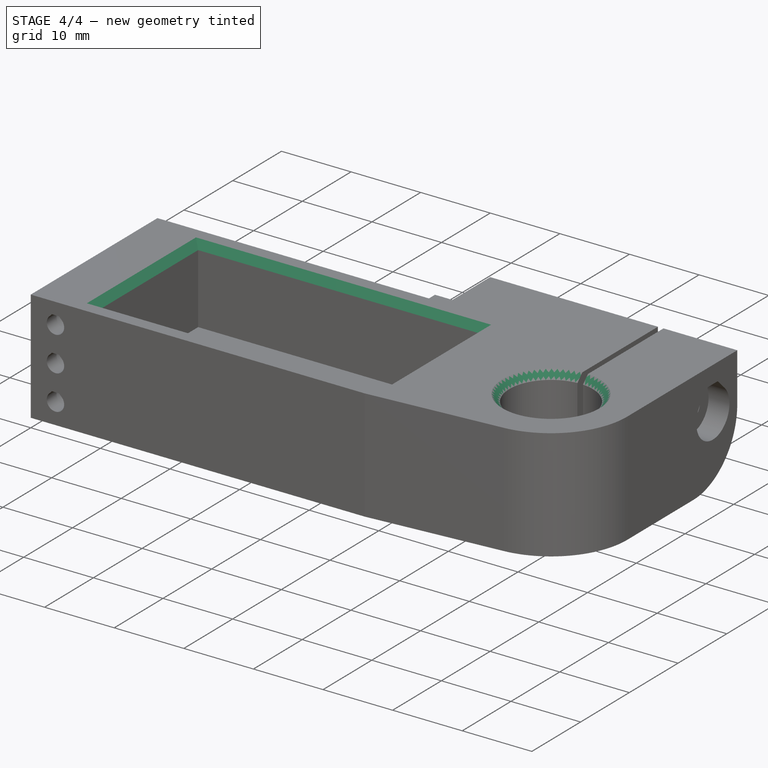
[diagram: stage 4 of 4 — iso view after this stage's code; geometry added in this stage tinted green]
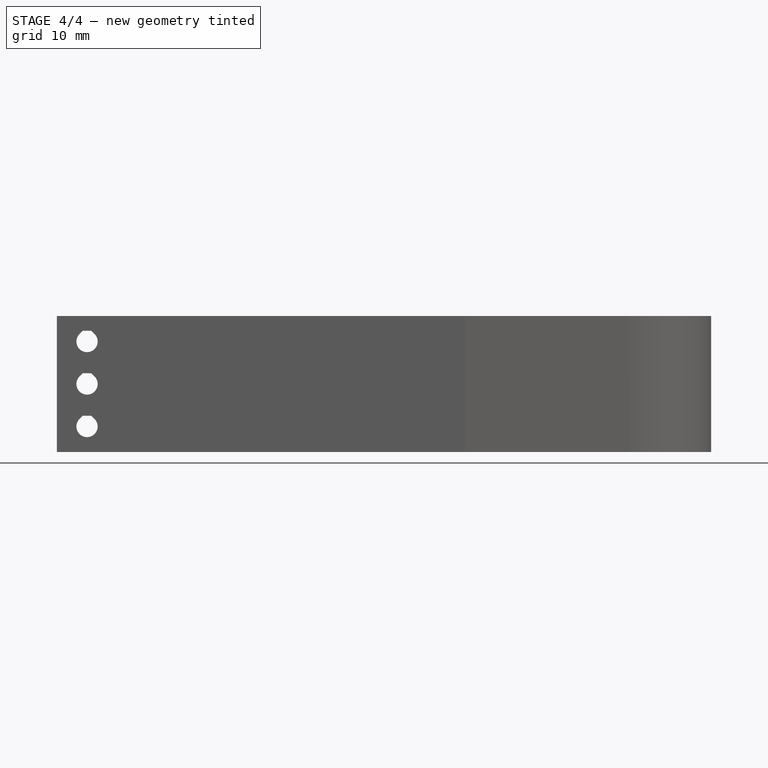
[diagram: stage 4 of 4 — front view after this stage's code; geometry added in this stage tinted green]
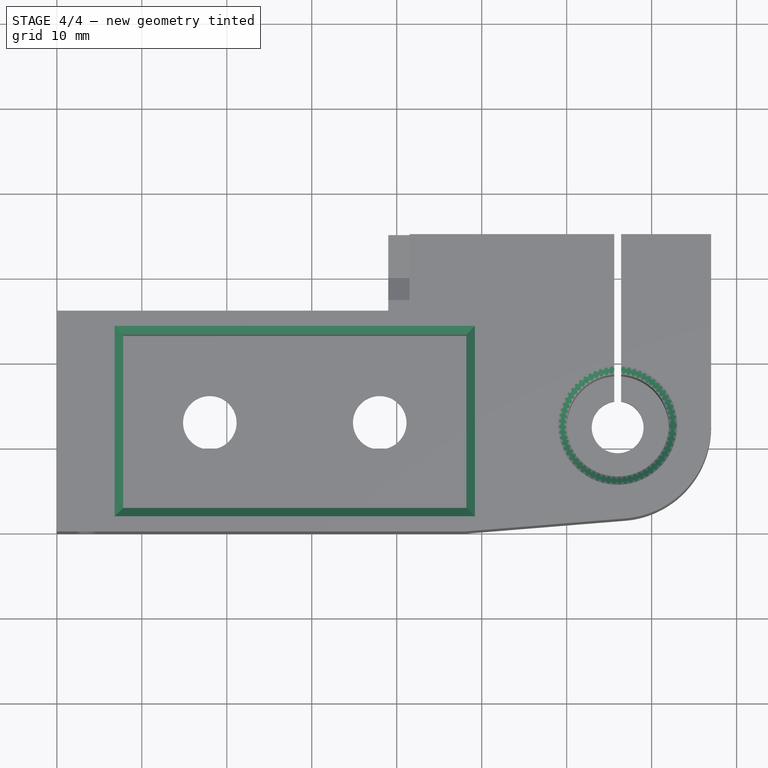
[diagram: stage 4 of 4 — top view after this stage's code; geometry added in this stage tinted green]
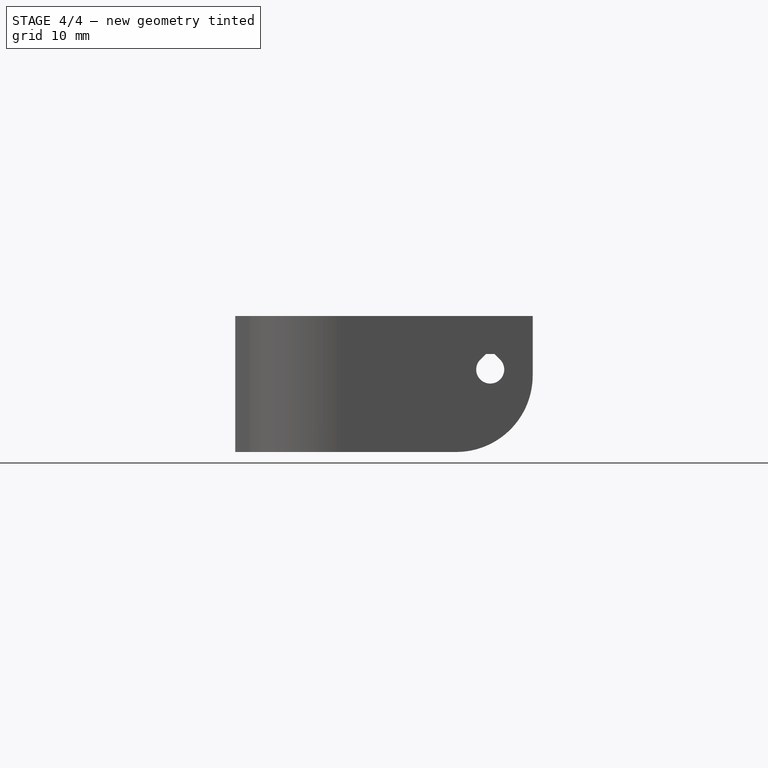
[diagram: stage 4 of 4 — right view after this stage's code; geometry added in this stage tinted green]
FEATURE [Sketcher::SketchObject] Sketch009
  MapMode = 5
  Support = -> [XY_Plane]
  expr: Constraints[40] = sheet1.ZPillarDyClearance
  expr: Constraints[9] = sheet1.ZPillarDX
  expr: Constraints[41] = sheet1.ZPostStopHole / 2
  expr: Constraints[49] = sheet1.ZPostClearance / 2
  expr: Constraints[42] = sheet1.ZPostClampSlotWidth
  expr: Constraints[47] = sheet1.ZPillarBolt1Y
  expr: AttachmentOffset.Base.z = 0
  expr: Constraints[8] = sheet1.ZPillarDY
  expr: Constraints[48] = sheet1.ZPillarBolt2Y
  expr: Constraints[43] = sheet1.M3ClampBoltSize + sheet1.M3CounterBoreDepth
  expr: Constraints[38] = sheet1.dy
  expr: Constraints[39] = sheet1.dx
  sketch-geometry (23):
    g0: LineSegment [constr] StartX=8 StartY=23 StartZ=0 EndX=48 EndY=23 EndZ=0
    g1: LineSegment [constr] StartX=48 StartY=23 StartZ=0 EndX=48 EndY=3 EndZ=0
    g2: LineSegment [constr] StartX=48 StartY=3 StartZ=0 EndX=8 EndY=3 EndZ=0
    g3: LineSegment [constr] StartX=8 StartY=3 StartZ=0 EndX=8 EndY=23 EndZ=0
    g4: LineSegment [constr] StartX=65.6 StartY=15.5237 StartZ=0 EndX=65.6 EndY=35 EndZ=0
    g5: LineSegment [constr] StartX=66.4 StartY=15.5237 StartZ=0 EndX=66.4 EndY=35 EndZ=0
    g6: ArcOfCircle [constr] CenterX=66 CenterY=12.5 CenterZ=0 NormalX=0 NormalY=0 NormalZ=1 AngleXU=0 Radius=3.05 StartAngle=1.70232 EndAngle=7.72246
    g7: LineSegment [constr] StartX=0 StartY=26 StartZ=0 EndX=0 EndY=0 EndZ=0
    g8: LineSegment [constr] StartX=0 StartY=0 StartZ=0 EndX=48 EndY=0 EndZ=0
    g9: LineSegment [constr] StartX=48 StartY=0 StartZ=0 EndX=66.8915 EndY=1.53619 EndZ=0
    g10: LineSegment [constr] StartX=77 StartY=12.5 StartZ=0 EndX=77 EndY=35 EndZ=0
    g11: LineSegment [constr] StartX=77 StartY=35 StartZ=0 EndX=66.4 EndY=35 EndZ=0
    g12: LineSegment [constr] StartX=65.6 StartY=35 StartZ=0 EndX=39 EndY=35 EndZ=0
    g13: LineSegment [constr] StartX=39 StartY=35 StartZ=0 EndX=39 EndY=26 EndZ=0
    g14: LineSegment [constr] StartX=39 StartY=26 StartZ=0 EndX=0 EndY=26 EndZ=0
    g15: ArcOfCircle [constr] CenterX=66 CenterY=12.5 CenterZ=0 NormalX=0 NormalY=0 NormalZ=1 AngleXU=0 Radius=11 StartAngle=4.79353 EndAngle=6.28319
    g16: LineSegment [constr] StartX=66 StartY=12.5 StartZ=0 EndX=66 EndY=35 EndZ=0
    g17: Circle CenterX=18 CenterY=13 CenterZ=0 NormalX=0 NormalY=0 NormalZ=1 AngleXU=0 Radius=6.15
    g18: Circle [constr] CenterX=38 CenterY=13 CenterZ=0 NormalX=0 NormalY=0 NormalZ=1 AngleXU=0 Radius=6.15
    g19: Circle [constr] CenterX=66 CenterY=12.5 CenterZ=0 NormalX=0 NormalY=0 NormalZ=1 AngleXU=0 Radius=6
    g20: LineSegment [constr] StartX=8 StartY=13 StartZ=0 EndX=48 EndY=13 EndZ=0
    g21: LineSegment [constr] StartX=28 StartY=23 StartZ=0 EndX=28 EndY=3 EndZ=0
    g22: GeomPoint X=28 Y=13 Z=0
  constraints (64):
    c: Coincident(g0,g1)
    c: Coincident(g1,g2)
    c: Coincident(g2,g3)
    c: Coincident(g3,g0)
    c: Horizontal(g0)
    c: Horizontal(g2)
    c: Vertical(g1)
    c: Vertical(g3)
    c: Distance(g1) = 20
    c: Distance(g0) = 40
    c: Vertical(g5)
    c: Vertical(g4)
    c: Coincident(g4,g6)
    c: Coincident(g5,g6)
    c: Coincident(g7,g8)
    c: Coincident(g8,g9)
    c: Coincident(g10,g11)
    c: Coincident(g12,g13)
    c: Coincident(g13,g14)
    c: Coincident(g7,g14)
    c: Coincident(g12,g4)
    c: Coincident(g5,g11)
    c: Coincident(g7,g-1)
    c: Vertical(g13)
    c: Vertical(g10)
    c: Vertical(g7)
    c: Horizontal(g14)
    c: Horizontal(g8)
    c: Horizontal(g12)
    c: Horizontal(g11)
    c: Coincident(g15,g6)
    c: Tangent(g15,g9) = -1.5708
    c: Tangent(g15,g10) = -1.5708
    c: Coincident(g16,g6)
    c: PointOnObject(g16,g12)
    c: Vertical(g16)
    c: Symmetric(g4,g5,g16)
    c: PointOnObject(g5,g12)
    c: Distance(g10,g-1) = 35
    c: DistanceX(g-2,g10) = 77
    c: Distance(g7,g0) = 3
    c: Radius(g6) = 3.05
    c: Distance(g5,g4) = 0.8
    c: Distance(g12,g10) = 38
    c: PointOnObject(g8,g1)
    c: Coincident(g19,g6)
    c: Equal(g17,g18)
    c: DistanceY(g-1,g17) = 13
    c: Distance(g18,g8) = 13
    c: Radius(g19) = 6
    c: PointOnObject(g20,g3)
    c: PointOnObject(g20,g1)
    c: Symmetric(g0,g1,g20)
    c: PointOnObject(g21,g0)
    c: PointOnObject(g21,g2)
    c: Symmetric(g0,g0,g21)
    c: PointOnObject(g22,g21)
    c: PointOnObject(g22,g20)
    c: DistanceY(g-1,g22) = 13
    c: DistanceX(g-2,g22) = 28
    c: Distance(g17,g18) = 20
    c: Symmetric(g17,g18,g21)
    c: Distance(g6,g20) = 0.5
    c: Distance(g6,g1) = 18
FEATURE [Sketcher::SketchObject] Sketch010
  AttachmentOffset = pos=(0,0,0.85) rot=(0,0,1;0rad)
  MapMode = 5
  Placement = pos=(0,0,0.85) rot=(0,0,1;0rad)
  Support = -> [XY_Plane]
  expr: Constraints[9] = sheet1.ZPillarDX
  expr: Constraints[41] = sheet1.ZPostStopHole / 2
  expr: Constraints[40] = sheet1.ZPillarDyClearance
  expr: Constraints[39] = sheet1.dx
  expr: Constraints[46] = sheet1.M6Clearance / 2 + 3
  expr: Constraints[48] = sheet1.ZPostClearance / 2
  expr: AttachmentOffset.Base.z = sheet1.M6CounterSinkDepth - 3
  expr: Constraints[8] = sheet1.ZPillarDY
  expr: Constraints[42] = sheet1.ZPostClampSlotWidth
  expr: Constraints[43] = sheet1.M3ClampBoltSize + sheet1.M3CounterBoreDepth
  expr: Constraints[38] = sheet1.dy
  sketch-geometry (23):
    g0: LineSegment [constr] StartX=8 StartY=23 StartZ=0 EndX=48 EndY=23 EndZ=0
    g1: LineSegment [constr] StartX=48 StartY=23 StartZ=0 EndX=48 EndY=3 EndZ=0
    g2: LineSegment [constr] StartX=48 StartY=3 StartZ=0 EndX=8 EndY=3 EndZ=0
    g3: LineSegment [constr] StartX=8 StartY=3 StartZ=0 EndX=8 EndY=23 EndZ=0
    g4: LineSegment [constr] StartX=65.6 StartY=15.5237 StartZ=0 EndX=65.6 EndY=35 EndZ=0
    g5: LineSegment [constr] StartX=66.4 StartY=15.5237 StartZ=0 EndX=66.4 EndY=35 EndZ=0
    g6: ArcOfCircle [constr] CenterX=66 CenterY=12.5 CenterZ=0 NormalX=0 NormalY=0 NormalZ=1 AngleXU=0 Radius=3.05 StartAngle=1.70232 EndAngle=7.72246
    g7: LineSegment [constr] StartX=0 StartY=26 StartZ=0 EndX=0 EndY=0 EndZ=0
    g8: LineSegment [constr] StartX=0 StartY=0 StartZ=0 EndX=48 EndY=0 EndZ=0
    g9: LineSegment [constr] StartX=48 StartY=0 StartZ=0 EndX=66.8915 EndY=1.53619 EndZ=0
    g10: LineSegment [constr] StartX=77 StartY=12.5 StartZ=0 EndX=77 EndY=35 EndZ=0
    g11: LineSegment [constr] StartX=77 StartY=35 StartZ=0 EndX=66.4 EndY=35 EndZ=0
    g12: LineSegment [constr] StartX=65.6 StartY=35 StartZ=0 EndX=39 EndY=35 EndZ=0
    g13: LineSegment [constr] StartX=39 StartY=35 StartZ=0 EndX=39 EndY=26 EndZ=0
    g14: LineSegment [constr] StartX=39 StartY=26 StartZ=0 EndX=0 EndY=26 EndZ=0
    g15: ArcOfCircle [constr] CenterX=66 CenterY=12.5 CenterZ=0 NormalX=0 NormalY=0 NormalZ=1 AngleXU=0 Radius=11 StartAngle=4.79353 EndAngle=6.28319
    g16: LineSegment [constr] StartX=66 StartY=12.5 StartZ=0 EndX=66 EndY=35 EndZ=0
    g17: Circle CenterX=18 CenterY=13 CenterZ=0 NormalX=0 NormalY=0 NormalZ=1 AngleXU=0 Radius=6.15
    g18: Circle [constr] CenterX=38 CenterY=13 CenterZ=0 NormalX=0 NormalY=0 NormalZ=1 AngleXU=0 Radius=6.15
    g19: Circle [constr] CenterX=66 CenterY=12.5 CenterZ=0 NormalX=0 NormalY=0 NormalZ=1 AngleXU=0 Radius=6
    g20: LineSegment [constr] StartX=8 StartY=13 StartZ=0 EndX=48 EndY=13 EndZ=0
    g21: LineSegment [constr] StartX=28 StartY=23 StartZ=0 EndX=28 EndY=3 EndZ=0
    g22: GeomPoint X=28 Y=13 Z=0
  constraints (64):
    c: Coincident(g0,g1)
    c: Coincident(g1,g2)
    c: Coincident(g2,g3)
    c: Coincident(g3,g0)
    c: Horizontal(g0)
    c: Horizontal(g2)
    c: Vertical(g1)
    c: Vertical(g3)
    c: Distance(g1) = 20
    c: Distance(g0) = 40
    c: Vertical(g5)
    c: Vertical(g4)
    c: Coincident(g4,g6)
    c: Coincident(g5,g6)
    c: Coincident(g7,g8)
    c: Coincident(g8,g9)
    c: Coincident(g10,g11)
    c: Coincident(g12,g13)
    c: Coincident(g13,g14)
    c: Coincident(g7,g14)
    c: Coincident(g12,g4)
    c: Coincident(g5,g11)
    c: Coincident(g7,g-1)
    c: Vertical(g13)
    c: Vertical(g10)
    c: Vertical(g7)
    c: Horizontal(g14)
    c: Horizontal(g8)
    c: Horizontal(g12)
    c: Horizontal(g11)
    c: Coincident(g15,g6)
    c: Tangent(g15,g9) = -1.5708
    c: Tangent(g15,g10) = -1.5708
    c: Coincident(g16,g6)
    c: PointOnObject(g16,g12)
    c: Vertical(g16)
    c: Symmetric(g4,g5,g16)
    c: PointOnObject(g5,g12)
    c: Distance(g10,g-1) = 35
    c: DistanceX(g-2,g10) = 77
    c: Distance(g7,g0) = 3
    c: Radius(g6) = 3.05
    c: Distance(g5,g4) = 0.8
    c: Distance(g12,g10) = 38
    c: PointOnObject(g8,g1)
    c: Coincident(g19,g6)
    c: Radius(g17) = 6.15
    c: Equal(g17,g18)
    c: Radius(g19) = 6
    c: PointOnObject(g21,g0)
    c: PointOnObject(g21,g2)
    c: PointOnObject(g20,g3)
    c: PointOnObject(g20,g1)
    c: PointOnObject(g22,g20)
    c: PointOnObject(g22,g21)
    c: Symmetric(g0,g0,g21)
    c: Symmetric(g0,g1,g20)
    c: DistanceX(g-2,g22) = 28
    c: DistanceY(g-1,g20) = 13
    c: Distance(g6,g1) = 18
    c: Distance(g6,g20) = 0.5
    c: Symmetric(g17,g18,g21)
    c: Distance(g17,g18) = 20
    c: PointOnObject(g17,g20)
FEATURE [Sketcher::SketchObject] Sketch011
  AttachmentOffset = pos=(0,0,3.85) rot=(0,0,1;0rad)
  MapMode = 5
  Placement = pos=(0,0,3.85) rot=(0,0,1;0rad)
  Support = -> [XY_Plane]
  expr: Constraints[9] = sheet1.ZPillarDX
  expr: Constraints[41] = sheet1.ZPostStopHole / 2
  expr: Constraints[40] = sheet1.ZPillarDyClearance
  expr: Constraints[39] = sheet1.dx
  expr: Constraints[46] = sheet1.M6Clearance / 2
  expr: AttachmentOffset.Base.z = sheet1.M6CounterSinkDepth
  expr: Constraints[8] = sheet1.ZPillarDY
  expr: Constraints[48] = sheet1.ZPostClearance / 2
  expr: Constraints[43] = sheet1.M3ClampBoltSize + sheet1.M3CounterBoreDepth
  expr: Constraints[42] = sheet1.ZPostClampSlotWidth
  expr: Constraints[38] = sheet1.dy
  sketch-geometry (23):
    g0: LineSegment [constr] StartX=8 StartY=23 StartZ=0 EndX=48 EndY=23 EndZ=0
    g1: LineSegment [constr] StartX=48 StartY=23 StartZ=0 EndX=48 EndY=3 EndZ=0
    g2: LineSegment [constr] StartX=48 StartY=3 StartZ=0 EndX=8 EndY=3 EndZ=0
    g3: LineSegment [constr] StartX=8 StartY=3 StartZ=0 EndX=8 EndY=23 EndZ=0
    g4: LineSegment [constr] StartX=65.6 StartY=15.5237 StartZ=0 EndX=65.6 EndY=35 EndZ=0
    g5: LineSegment [constr] StartX=66.4 StartY=15.5237 StartZ=0 EndX=66.4 EndY=35 EndZ=0
    g6: ArcOfCircle [constr] CenterX=66 CenterY=12.5 CenterZ=0 NormalX=0 NormalY=0 NormalZ=1 AngleXU=0 Radius=3.05 StartAngle=1.70232 EndAngle=7.72246
    g7: LineSegment [constr] StartX=0 StartY=26 StartZ=0 EndX=0 EndY=0 EndZ=0
    g8: LineSegment [constr] StartX=0 StartY=0 StartZ=0 EndX=48 EndY=0 EndZ=0
    g9: LineSegment [constr] StartX=48 StartY=0 StartZ=0 EndX=66.8915 EndY=1.53619 EndZ=0
    g10: LineSegment [constr] StartX=77 StartY=12.5 StartZ=0 EndX=77 EndY=35 EndZ=0
    g11: LineSegment [constr] StartX=77 StartY=35 StartZ=0 EndX=66.4 EndY=35 EndZ=0
    g12: LineSegment [constr] StartX=65.6 StartY=35 StartZ=0 EndX=39 EndY=35 EndZ=0
    g13: LineSegment [constr] StartX=39 StartY=35 StartZ=0 EndX=39 EndY=26 EndZ=0
    g14: LineSegment [constr] StartX=39 StartY=26 StartZ=0 EndX=0 EndY=26 EndZ=0
    g15: ArcOfCircle [constr] CenterX=66 CenterY=12.5 CenterZ=0 NormalX=0 NormalY=0 NormalZ=1 AngleXU=0 Radius=11 StartAngle=4.79353 EndAngle=6.28319
    g16: LineSegment [constr] StartX=66 StartY=12.5 StartZ=0 EndX=66 EndY=35 EndZ=0
    g17: Circle CenterX=18 CenterY=13 CenterZ=0 NormalX=0 NormalY=0 NormalZ=1 AngleXU=0 Radius=3.15
    g18: Circle [constr] CenterX=38 CenterY=13 CenterZ=0 NormalX=0 NormalY=0 NormalZ=1 AngleXU=0 Radius=3.15
    g19: Circle [constr] CenterX=66 CenterY=12.5 CenterZ=0 NormalX=0 NormalY=0 NormalZ=1 AngleXU=0 Radius=6
    g20: LineSegment [constr] StartX=28 StartY=23 StartZ=0 EndX=28 EndY=3 EndZ=0
    g21: LineSegment [constr] StartX=8 StartY=13 StartZ=0 EndX=48 EndY=13 EndZ=0
    g22: GeomPoint X=28 Y=13 Z=0
  constraints (64):
    c: Coincident(g0,g1)
    c: Coincident(g1,g2)
    c: Coincident(g2,g3)
    c: Coincident(g3,g0)
    c: Horizontal(g0)
    c: Horizontal(g2)
    c: Vertical(g1)
    c: Vertical(g3)
    c: Distance(g1) = 20
    c: Distance(g0) = 40
    c: Vertical(g5)
    c: Vertical(g4)
    c: Coincident(g4,g6)
    c: Coincident(g5,g6)
    c: Coincident(g7,g8)
    c: Coincident(g8,g9)
    c: Coincident(g10,g11)
    c: Coincident(g12,g13)
    c: Coincident(g13,g14)
    c: Coincident(g7,g14)
    c: Coincident(g12,g4)
    c: Coincident(g5,g11)
    c: Coincident(g7,g-1)
    c: Vertical(g13)
    c: Vertical(g10)
    c: Vertical(g7)
    c: Horizontal(g14)
    c: Horizontal(g8)
    c: Horizontal(g12)
    c: Horizontal(g11)
    c: Coincident(g15,g6)
    c: Tangent(g15,g9) = -1.5708
    c: Tangent(g15,g10) = -1.5708
    c: Coincident(g16,g6)
    c: PointOnObject(g16,g12)
    c: Vertical(g16)
    c: Symmetric(g4,g5,g16)
    c: PointOnObject(g5,g12)
    c: Distance(g10,g-1) = 35
    c: DistanceX(g-2,g10) = 77
    c: Distance(g7,g0) = 3
    c: Radius(g6) = 3.05
    c: Distance(g5,g4) = 0.8
    c: Distance(g12,g10) = 38
    c: PointOnObject(g8,g1)
    c: Coincident(g19,g6)
    c: Radius(g17) = 3.15
    c: Equal(g17,g18)
    c: Radius(g19) = 6
    c: PointOnObject(g22,g20)
    c: PointOnObject(g22,g21)
    c: PointOnObject(g21,g3)
    c: PointOnObject(g21,g1)
    c: PointOnObject(g20,g0)
    c: PointOnObject(g20,g2)
    c: Symmetric(g0,g0,g20)
    c: Symmetric(g2,g0,g21)
    c: Symmetric(g17,g18,g20)
    c: PointOnObject(g17,g21)
    c: Distance(g17,g18) = 20
    c: DistanceY(g-1,g22) = 13
    c: DistanceX(g-2,g22) = 28
    c: Distance(g6,g1) = 18
    c: Distance(g6,g21) = 0.5
FEATURE [PartDesign::SubtractiveLoft] SubtractiveLoft
  BaseFeature = -> Pocket006
  Closed = true
  Profile = -> Sketch009
  Ruled = true
  Sections = -> [Sketch010,Sketch011]
FEATURE [Sketcher::SketchObject] Sketch012
  MapMode = 5
  Support = -> [XY_Plane]
  expr: Constraints[9] = sheet1.ZPillarDX
  expr: Constraints[41] = sheet1.ZPostStopHole / 2
  expr: Constraints[40] = sheet1.ZPillarDyClearance
  expr: Constraints[39] = sheet1.dx
  expr: AttachmentOffset.Base.z = 0
  expr: Constraints[8] = sheet1.ZPillarDY
  expr: Constraints[48] = sheet1.ZPostClearance / 2
  expr: Constraints[43] = sheet1.M3ClampBoltSize + sheet1.M3CounterBoreDepth
  expr: Constraints[42] = sheet1.ZPostClampSlotWidth
  expr: Constraints[46] = sheet1.M6Clearance / 2 + 3
  expr: Constraints[38] = sheet1.dy
  sketch-geometry (23):
    g0: LineSegment [constr] StartX=8 StartY=23 StartZ=0 EndX=48 EndY=23 EndZ=0
    g1: LineSegment [constr] StartX=48 StartY=23 StartZ=0 EndX=48 EndY=3 EndZ=0
    g2: LineSegment [constr] StartX=48 StartY=3 StartZ=0 EndX=8 EndY=3 EndZ=0
    g3: LineSegment [constr] StartX=8 StartY=3 StartZ=0 EndX=8 EndY=23 EndZ=0
    g4: LineSegment [constr] StartX=65.6 StartY=15.5237 StartZ=0 EndX=65.6 EndY=35 EndZ=0
    g5: LineSegment [constr] StartX=66.4 StartY=15.5237 StartZ=0 EndX=66.4 EndY=35 EndZ=0
    g6: ArcOfCircle [constr] CenterX=66 CenterY=12.5 CenterZ=0 NormalX=0 NormalY=0 NormalZ=1 AngleXU=0 Radius=3.05 StartAngle=1.70232 EndAngle=7.72246
    g7: LineSegment [constr] StartX=0 StartY=26 StartZ=0 EndX=0 EndY=0 EndZ=0
    g8: LineSegment [constr] StartX=0 StartY=0 StartZ=0 EndX=48 EndY=0 EndZ=0
    g9: LineSegment [constr] StartX=48 StartY=0 StartZ=0 EndX=66.8915 EndY=1.53619 EndZ=0
    g10: LineSegment [constr] StartX=77 StartY=12.5 StartZ=0 EndX=77 EndY=35 EndZ=0
    g11: LineSegment [constr] StartX=77 StartY=35 StartZ=0 EndX=66.4 EndY=35 EndZ=0
    g12: LineSegment [constr] StartX=65.6 StartY=35 StartZ=0 EndX=39 EndY=35 EndZ=0
    g13: LineSegment [constr] StartX=39 StartY=35 StartZ=0 EndX=39 EndY=26 EndZ=0
    g14: LineSegment [constr] StartX=39 StartY=26 StartZ=0 EndX=0 EndY=26 EndZ=0
    g15: ArcOfCircle [constr] CenterX=66 CenterY=12.5 CenterZ=0 NormalX=0 NormalY=0 NormalZ=1 AngleXU=0 Radius=11 StartAngle=4.79353 EndAngle=6.28319
    g16: LineSegment [constr] StartX=66 StartY=12.5 StartZ=0 EndX=66 EndY=35 EndZ=0
    g17: Circle [constr] CenterX=18 CenterY=13 CenterZ=0 NormalX=0 NormalY=0 NormalZ=1 AngleXU=0 Radius=6.15
    g18: Circle CenterX=38 CenterY=13 CenterZ=0 NormalX=0 NormalY=0 NormalZ=1 AngleXU=0 Radius=6.15
    g19: Circle [constr] CenterX=66 CenterY=12.5 CenterZ=0 NormalX=0 NormalY=0 NormalZ=1 AngleXU=0 Radius=6
    g20: LineSegment [constr] StartX=28 StartY=23 StartZ=0 EndX=28 EndY=3 EndZ=0
    g21: LineSegment [constr] StartX=8 StartY=13 StartZ=0 EndX=48 EndY=13 EndZ=0
    g22: GeomPoint X=28 Y=13 Z=0
  constraints (64):
    c: Coincident(g0,g1)
    c: Coincident(g1,g2)
    c: Coincident(g2,g3)
    c: Coincident(g3,g0)
    c: Horizontal(g0)
    c: Horizontal(g2)
    c: Vertical(g1)
    c: Vertical(g3)
    c: Distance(g1) = 20
    c: Distance(g0) = 40
    c: Vertical(g5)
    c: Vertical(g4)
    c: Coincident(g4,g6)
    c: Coincident(g5,g6)
    c: Coincident(g7,g8)
    c: Coincident(g8,g9)
    c: Coincident(g10,g11)
    c: Coincident(g12,g13)
    c: Coincident(g13,g14)
    c: Coincident(g7,g14)
    c: Coincident(g12,g4)
    c: Coincident(g5,g11)
    c: Coincident(g7,g-1)
    c: Vertical(g13)
    c: Vertical(g10)
    c: Vertical(g7)
    c: Horizontal(g14)
    c: Horizontal(g8)
    c: Horizontal(g12)
    c: Horizontal(g11)
    c: Coincident(g15,g6)
    c: Tangent(g15,g9) = -1.5708
    c: Tangent(g15,g10) = -1.5708
    c: Coincident(g16,g6)
    c: PointOnObject(g16,g12)
    c: Vertical(g16)
    c: Symmetric(g4,g5,g16)
    c: PointOnObject(g5,g12)
    c: Distance(g10,g-1) = 35
    c: DistanceX(g-2,g10) = 77
    c: Distance(g7,g0) = 3
    c: Radius(g6) = 3.05
    c: Distance(g5,g4) = 0.8
    c: Distance(g12,g10) = 38
    c: PointOnObject(g8,g1)
    c: Coincident(g19,g6)
    c: Radius(g17) = 6.15
    c: Equal(g17,g18)
    c: Radius(g19) = 6
    c: PointOnObject(g18,g21)
    c: PointOnObject(g20,g0)
    c: PointOnObject(g20,g2)
    c: PointOnObject(g21,g3)
    c: PointOnObject(g21,g1)
    c: Symmetric(g0,g0,g20)
    c: Symmetric(g0,g1,g21)
    c: Symmetric(g17,g18,g20)
    c: PointOnObject(g22,g21)
    c: PointOnObject(g22,g20)
    c: DistanceX(g-2,g22) = 28
    c: DistanceY(g-1,g22) = 13
    c: Distance(g6,g21) = 0.5
    c: Distance(g6,g1) = 18
    c: Distance(g17,g18) = 20
FEATURE [Sketcher::SketchObject] Sketch013
  AttachmentOffset = pos=(0,0,3.85) rot=(0,0,1;0rad)
  MapMode = 5
  Placement = pos=(0,0,3.85) rot=(0,0,1;0rad)
  Support = -> [XY_Plane]
  expr: Constraints[9] = sheet1.ZPillarDX
  expr: Constraints[41] = sheet1.ZPostStopHole / 2
  expr: Constraints[40] = sheet1.ZPillarDyClearance
  expr: Constraints[39] = sheet1.dx
  expr: Constraints[48] = sheet1.ZPostClearance / 2
  expr: AttachmentOffset.Base.z = sheet1.M6CounterSinkDepth
  expr: Constraints[8] = sheet1.ZPillarDY
  expr: Constraints[43] = sheet1.M3ClampBoltSize + sheet1.M3CounterBoreDepth
  expr: Constraints[42] = sheet1.ZPostClampSlotWidth
  expr: Constraints[46] = sheet1.M6Clearance / 2
  expr: Constraints[38] = sheet1.dy
  sketch-geometry (23):
    g0: LineSegment [constr] StartX=8 StartY=23 StartZ=0 EndX=48 EndY=23 EndZ=0
    g1: LineSegment [constr] StartX=48 StartY=23 StartZ=0 EndX=48 EndY=3 EndZ=0
    g2: LineSegment [constr] StartX=48 StartY=3 StartZ=0 EndX=8 EndY=3 EndZ=0
    g3: LineSegment [constr] StartX=8 StartY=3 StartZ=0 EndX=8 EndY=23 EndZ=0
    g4: LineSegment [constr] StartX=65.6 StartY=15.5237 StartZ=0 EndX=65.6 EndY=35 EndZ=0
    g5: LineSegment [constr] StartX=66.4 StartY=15.5237 StartZ=0 EndX=66.4 EndY=35 EndZ=0
    g6: ArcOfCircle [constr] CenterX=66 CenterY=12.5 CenterZ=0 NormalX=0 NormalY=0 NormalZ=1 AngleXU=0 Radius=3.05 StartAngle=1.70232 EndAngle=7.72246
    g7: LineSegment [constr] StartX=0 StartY=26 StartZ=0 EndX=0 EndY=0 EndZ=0
    g8: LineSegment [constr] StartX=0 StartY=0 StartZ=0 EndX=48 EndY=0 EndZ=0
    g9: LineSegment [constr] StartX=48 StartY=0 StartZ=0 EndX=66.8915 EndY=1.53619 EndZ=0
    g10: LineSegment [constr] StartX=77 StartY=12.5 StartZ=0 EndX=77 EndY=35 EndZ=0
    g11: LineSegment [constr] StartX=77 StartY=35 StartZ=0 EndX=66.4 EndY=35 EndZ=0
    g12: LineSegment [constr] StartX=65.6 StartY=35 StartZ=0 EndX=39 EndY=35 EndZ=0
    g13: LineSegment [constr] StartX=39 StartY=35 StartZ=0 EndX=39 EndY=26 EndZ=0
    g14: LineSegment [constr] StartX=39 StartY=26 StartZ=0 EndX=0 EndY=26 EndZ=0
    g15: ArcOfCircle [constr] CenterX=66 CenterY=12.5 CenterZ=0 NormalX=0 NormalY=0 NormalZ=1 AngleXU=0 Radius=11 StartAngle=4.79353 EndAngle=6.28319
    g16: LineSegment [constr] StartX=66 StartY=12.5 StartZ=0 EndX=66 EndY=35 EndZ=0
    g17: Circle [constr] CenterX=18 CenterY=13 CenterZ=0 NormalX=0 NormalY=0 NormalZ=1 AngleXU=0 Radius=3.15
    g18: Circle CenterX=38 CenterY=13 CenterZ=0 NormalX=0 NormalY=0 NormalZ=1 AngleXU=0 Radius=3.15
    g19: Circle [constr] CenterX=66 CenterY=12.5 CenterZ=0 NormalX=0 NormalY=0 NormalZ=1 AngleXU=0 Radius=6
    g20: LineSegment [constr] StartX=8 StartY=13 StartZ=0 EndX=48 EndY=13 EndZ=0
    g21: LineSegment [constr] StartX=28 StartY=23 StartZ=0 EndX=28 EndY=3 EndZ=0
    g22: GeomPoint X=28 Y=13 Z=0
  constraints (64):
    c: Coincident(g0,g1)
    c: Coincident(g1,g2)
    c: Coincident(g2,g3)
    c: Coincident(g3,g0)
    c: Horizontal(g0)
    c: Horizontal(g2)
    c: Vertical(g1)
    c: Vertical(g3)
    c: Distance(g1) = 20
    c: Distance(g0) = 40
    c: Vertical(g5)
    c: Vertical(g4)
    c: Coincident(g4,g6)
    c: Coincident(g5,g6)
    c: Coincident(g7,g8)
    c: Coincident(g8,g9)
    c: Coincident(g10,g11)
    c: Coincident(g12,g13)
    c: Coincident(g13,g14)
    c: Coincident(g7,g14)
    c: Coincident(g12,g4)
    c: Coincident(g5,g11)
    c: Coincident(g7,g-1)
    c: Vertical(g13)
    c: Vertical(g10)
    c: Vertical(g7)
    c: Horizontal(g14)
    c: Horizontal(g8)
    c: Horizontal(g12)
    c: Horizontal(g11)
    c: Coincident(g15,g6)
    c: Tangent(g15,g9) = -1.5708
    c: Tangent(g15,g10) = -1.5708
    c: Coincident(g16,g6)
    c: PointOnObject(g16,g12)
    c: Vertical(g16)
    c: Symmetric(g4,g5,g16)
    c: PointOnObject(g5,g12)
    c: Distance(g10,g-1) = 35
    c: DistanceX(g-2,g10) = 77
    c: Distance(g7,g0) = 3
    c: Radius(g6) = 3.05
    c: Distance(g5,g4) = 0.8
    c: Distance(g12,g10) = 38
    c: PointOnObject(g8,g1)
    c: Coincident(g19,g6)
    c: Radius(g17) = 3.15
    c: Equal(g17,g18)
    c: Radius(g19) = 6
    c: PointOnObject(g21,g0)
    c: PointOnObject(g21,g2)
    c: PointOnObject(g20,g3)
    c: PointOnObject(g18,g20)
    c: PointOnObject(g20,g1)
    c: Symmetric(g17,g18,g21)
    c: Symmetric(g0,g0,g21)
    c: Symmetric(g2,g0,g20)
    c: PointOnObject(g22,g21)
    c: PointOnObject(g22,g20)
    c: DistanceY(g-1,g22) = 13
    c: DistanceX(g-2,g22) = 28
    c: Distance(g17,g18) = 20
    c: Distance(g6,g1) = 18
    c: Distance(g6,g20) = 0.5
FEATURE [Sketcher::SketchObject] Sketch014
  AttachmentOffset = pos=(0,0,0.85) rot=(0,0,1;0rad)
  MapMode = 5
  Placement = pos=(0,0,0.85) rot=(0,0,1;0rad)
  Support = -> [XY_Plane]
  expr: Constraints[9] = sheet1.ZPillarDX
  expr: Constraints[41] = sheet1.ZPostStopHole / 2
  expr: Constraints[40] = sheet1.ZPillarDyClearance
  expr: Constraints[39] = sheet1.dx
  expr: Constraints[48] = sheet1.ZPostClearance / 2
  expr: AttachmentOffset.Base.z = sheet1.M6CounterSinkDepth - 3
  expr: Constraints[8] = sheet1.ZPillarDY
  expr: Constraints[46] = sheet1.M6Clearance / 2 + 3
  expr: Constraints[43] = sheet1.M3ClampBoltSize + sheet1.M3CounterBoreDepth
  expr: Constraints[42] = sheet1.ZPostClampSlotWidth
  expr: Constraints[38] = sheet1.dy
  sketch-geometry (23):
    g0: LineSegment [constr] StartX=8 StartY=23 StartZ=0 EndX=48 EndY=23 EndZ=0
    g1: LineSegment [constr] StartX=48 StartY=23 StartZ=0 EndX=48 EndY=3 EndZ=0
    g2: LineSegment [constr] StartX=48 StartY=3 StartZ=0 EndX=8 EndY=3 EndZ=0
    g3: LineSegment [constr] StartX=8 StartY=3 StartZ=0 EndX=8 EndY=23 EndZ=0
    g4: LineSegment [constr] StartX=65.6 StartY=15.5237 StartZ=0 EndX=65.6 EndY=35 EndZ=0
    g5: LineSegment [constr] StartX=66.4 StartY=15.5237 StartZ=0 EndX=66.4 EndY=35 EndZ=0
    g6: ArcOfCircle [constr] CenterX=66 CenterY=12.5 CenterZ=0 NormalX=0 NormalY=0 NormalZ=1 AngleXU=0 Radius=3.05 StartAngle=1.70232 EndAngle=7.72246
    g7: LineSegment [constr] StartX=0 StartY=26 StartZ=0 EndX=0 EndY=0 EndZ=0
    g8: LineSegment [constr] StartX=0 StartY=0 StartZ=0 EndX=48 EndY=0 EndZ=0
    g9: LineSegment [constr] StartX=48 StartY=0 StartZ=0 EndX=66.8915 EndY=1.53619 EndZ=0
    g10: LineSegment [constr] StartX=77 StartY=12.5 StartZ=0 EndX=77 EndY=35 EndZ=0
    g11: LineSegment [constr] StartX=77 StartY=35 StartZ=0 EndX=66.4 EndY=35 EndZ=0
    g12: LineSegment [constr] StartX=65.6 StartY=35 StartZ=0 EndX=39 EndY=35 EndZ=0
    g13: LineSegment [constr] StartX=39 StartY=35 StartZ=0 EndX=39 EndY=26 EndZ=0
    g14: LineSegment [constr] StartX=39 StartY=26 StartZ=0 EndX=0 EndY=26 EndZ=0
    g15: ArcOfCircle [constr] CenterX=66 CenterY=12.5 CenterZ=0 NormalX=0 NormalY=0 NormalZ=1 AngleXU=0 Radius=11 StartAngle=4.79353 EndAngle=6.28319
    g16: LineSegment [constr] StartX=66 StartY=12.5 StartZ=0 EndX=66 EndY=35 EndZ=0
    g17: Circle [constr] CenterX=18 CenterY=13 CenterZ=0 NormalX=0 NormalY=0 NormalZ=1 AngleXU=0 Radius=6.15
    g18: Circle CenterX=38 CenterY=13 CenterZ=0 NormalX=0 NormalY=0 NormalZ=1 AngleXU=0 Radius=6.15
    g19: Circle [constr] CenterX=66 CenterY=12.5 CenterZ=0 NormalX=0 NormalY=0 NormalZ=1 AngleXU=0 Radius=6
    g20: LineSegment [constr] StartX=8 StartY=13 StartZ=0 EndX=48 EndY=13 EndZ=0
    g21: LineSegment [constr] StartX=28 StartY=23 StartZ=0 EndX=28 EndY=3 EndZ=0
    g22: GeomPoint X=28 Y=13 Z=0
  constraints (64):
    c: Coincident(g0,g1)
    c: Coincident(g1,g2)
    c: Coincident(g2,g3)
    c: Coincident(g3,g0)
    c: Horizontal(g0)
    c: Horizontal(g2)
    c: Vertical(g1)
    c: Vertical(g3)
    c: Distance(g1) = 20
    c: Distance(g0) = 40
    c: Vertical(g5)
    c: Vertical(g4)
    c: Coincident(g4,g6)
    c: Coincident(g5,g6)
    c: Coincident(g7,g8)
    c: Coincident(g8,g9)
    c: Coincident(g10,g11)
    c: Coincident(g12,g13)
    c: Coincident(g13,g14)
    c: Coincident(g7,g14)
    c: Coincident(g12,g4)
    c: Coincident(g5,g11)
    c: Coincident(g7,g-1)
    c: Vertical(g13)
    c: Vertical(g10)
    c: Vertical(g7)
    c: Horizontal(g14)
    c: Horizontal(g8)
    c: Horizontal(g12)
    c: Horizontal(g11)
    c: Coincident(g15,g6)
    c: Tangent(g15,g9) = -1.5708
    c: Tangent(g15,g10) = -1.5708
    c: Coincident(g16,g6)
    c: PointOnObject(g16,g12)
    c: Vertical(g16)
    c: Symmetric(g4,g5,g16)
    c: PointOnObject(g5,g12)
    c: Distance(g10,g-1) = 35
    c: DistanceX(g-2,g10) = 77
    c: Distance(g7,g0) = 3
    c: Radius(g6) = 3.05
    c: Distance(g5,g4) = 0.8
    c: Distance(g12,g10) = 38
    c: PointOnObject(g8,g1)
    c: Coincident(g19,g6)
    c: Radius(g17) = 6.15
    c: Equal(g17,g18)
    c: Radius(g19) = 6
    c: PointOnObject(g21,g0)
    c: PointOnObject(g21,g2)
    c: PointOnObject(g20,g3)
    c: PointOnObject(g20,g1)
    c: Symmetric(g0,g0,g21)
    c: Symmetric(g2,g0,g20)
    c: Symmetric(g17,g18,g21)
    c: PointOnObject(g18,g20)
    c: PointOnObject(g22,g21)
    c: PointOnObject(g22,g20)
    c: Distance(g17,g18) = 20
    c: DistanceX(g-2,g22) = 28
    c: DistanceY(g-1,g22) = 13
    c: Distance(g6,g1) = 18
    c: Distance(g6,g20) = 0.5
FEATURE [PartDesign::SubtractiveLoft] SubtractiveLoft001
  BaseFeature = -> SubtractiveLoft
  Closed = true
  Profile = -> Sketch012
  Ruled = true
  Sections = -> [Sketch014,Sketch013]
FEATURE [PartDesign::Chamfer] Chamfer
  Base = -> SubtractiveLoft001 [Edge83,Edge81,Edge80,Edge82,Edge73,Edge74]
  BaseFeature = -> SubtractiveLoft001
  Size = 1
FEATURE [PartDesign::Body] Body
  Group = -> [Sketch,Pad,Sketch001,Pocket,Sketch002,Pocket001,Sketch003,Pocket002,Sketch004,Pocket003,Sketch005,Pocket004,Sketch006,Pocket005,Sketch007,Pocket006,Sketch009,Sketch010,Sketch011,SubtractiveLoft,Sketch012,Sketch013,Sketch014,SubtractiveLoft001,Chamfer]
  Origin = -> Origin
  Tip = -> Chamfer
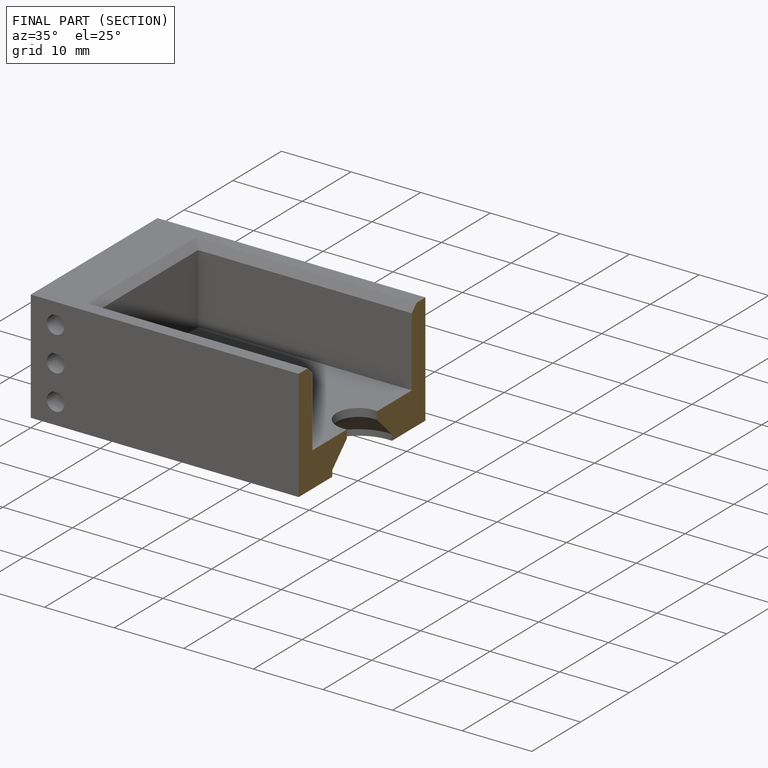
[diagram: finished part — half-section view (interior)]
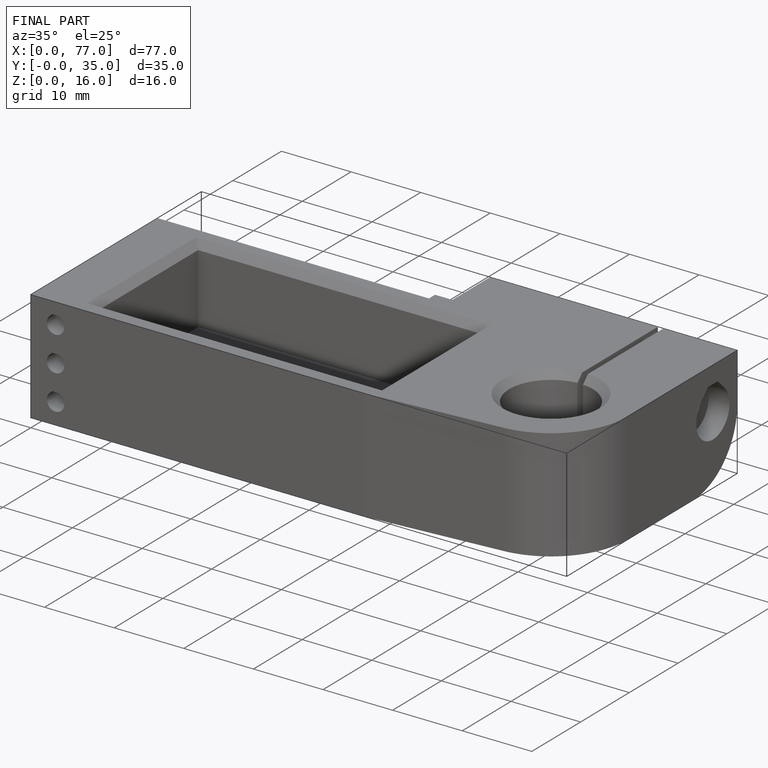
[diagram: finished part — iso view with bounding-box wireframe]
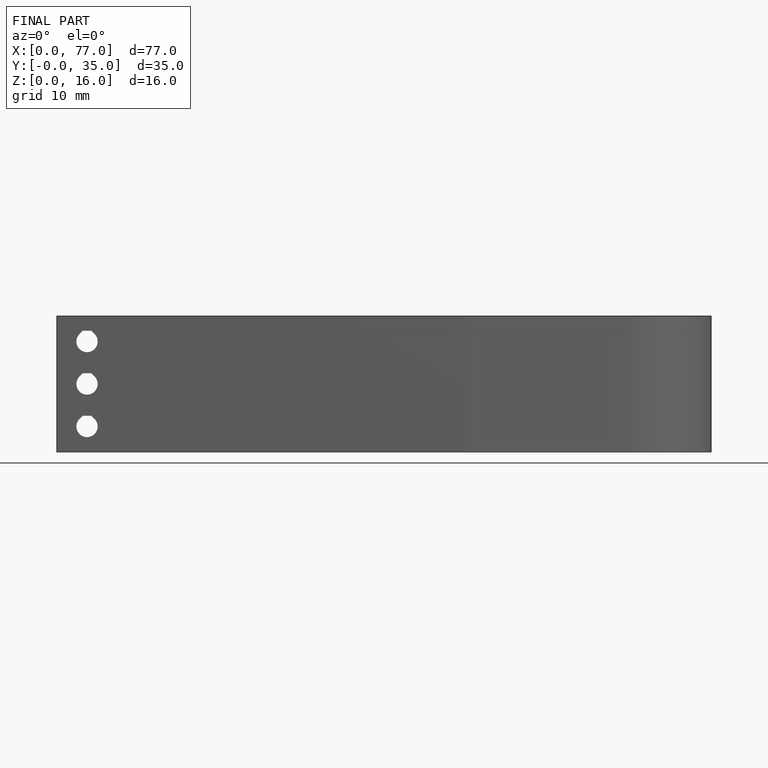
[diagram: finished part — front view with bounding-box wireframe]
